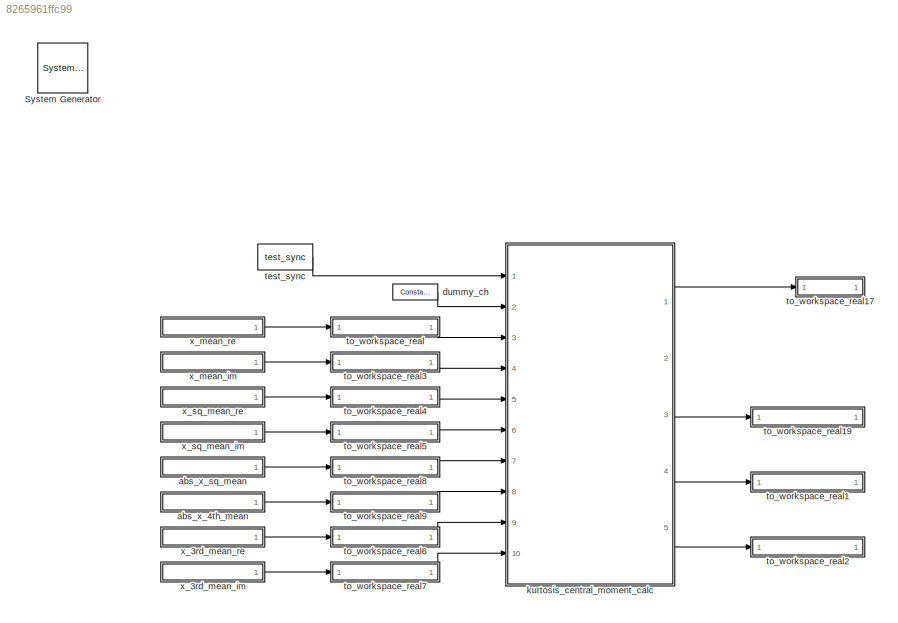
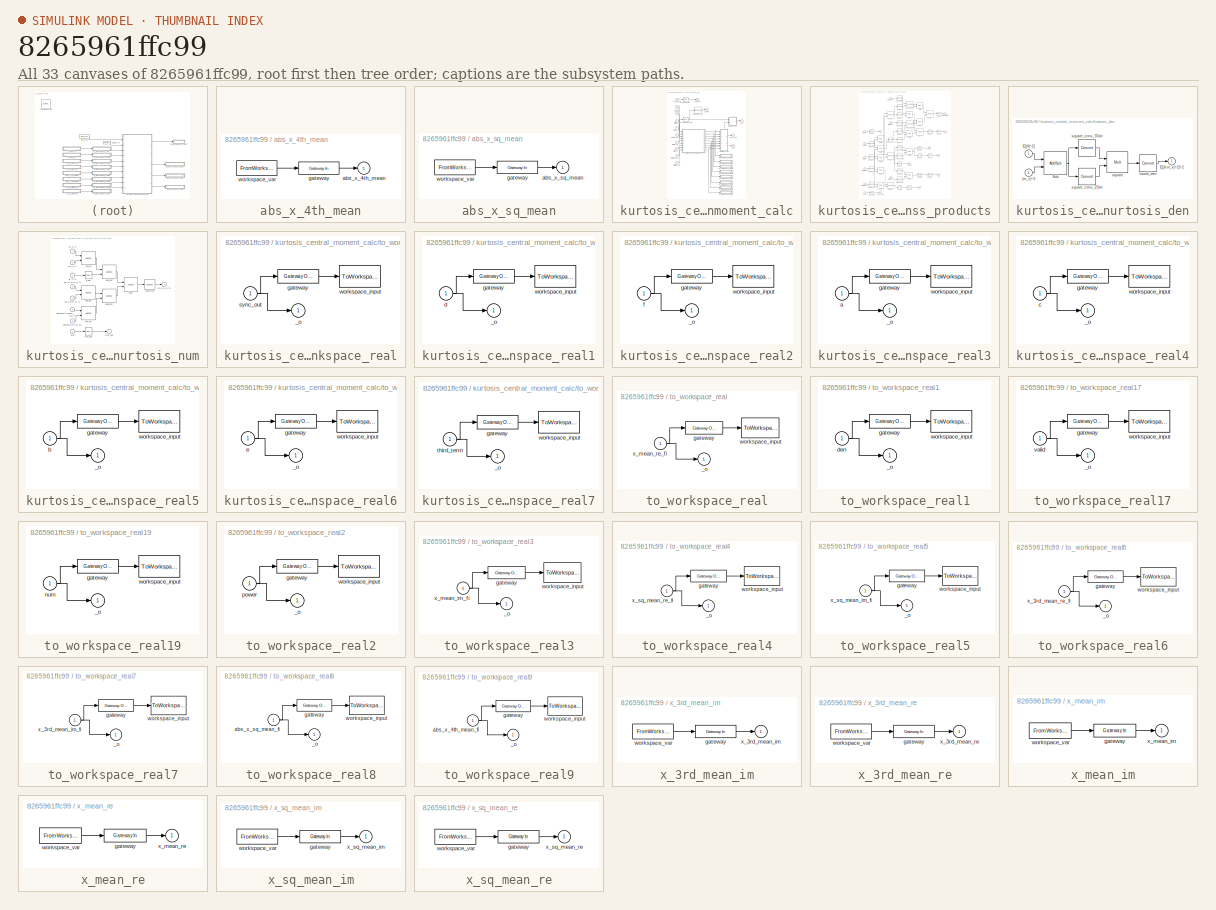
[diagram: thumbnail index - all 33 canvases of the model, root first then tree order]
MODEL slx_8265961ffc99
KIND model
BLOCK [Reference]  System Generator  REF=xbsIndex_r4/ System Generator
  AttributesFormatString = System\nGenerator
  Impl_file = ISE Defaults
  Ports = []
  SourceBlock = xbsIndex_r4/ System Generator
  SourceType = Xilinx System Generator Block
  Synth_file = XST Defaults
  Tag = genX
  UserDataPersistent = on
  block_type = sysgen
  clock_wrapper = Clock Enables
  core_generation = According to Block Masks
  dbl_ovrd = According to Block Masks
  dcm_input_clock_period = 10
  deprecated_control = off
  directory = ./netlist
  eval_field = 0
  has_advanced_control = 0
  incr_netlist = off
  infoedit = System Generator
  package = fbg676
  part = xc7k325t
  proj_type = Project Navigator
  run_coregen = off
  sg_icon_stat = 50,50,0,0,token,white,0,58c5b5770fe5f7c311f53dbc6e73f0f6,right,,[ ],[ ]
  sg_mask_display = fprintf('','COMMENT: begin icon graphics');\npatch([0 50 50 0 0 ],[0 0 50 50 0 ],[1 1 1 ]);\npatch([1.6375 16.81 27.31 37.81 48.31 27.31 12.1375 1.6375 ],[36.655 36.655 47.155 36.655 47.155 47.155 47.155 36.655 ],[0.933333 0.203922 0.141176 ]);\npatch([12.1375 27.31 16.81 1.6375 12.1375 ],[26.155 26.155 36.655 36.655 26.155 ],[0.698039 0.0313725 0.219608 ]);\npatch([1.6375 16.81 27.31 12.1375 1.6375 ]...<+327ch>
  sggui_pos = -1,-1,-1,-1
  simulink_period = 1
  speed = -3
  synthesis_tool = XST
  sysclk_period = 10
  testbench = off
  trim_vbits = Everywhere in SubSystem
  xilinxfamily = Kintex7
BLOCK [SubSystem] abs_x_4th_mean
  FunctionWithSeparateData = off
  MaskHideContents = off
  MinAlgLoopOccurrences = off
  Opaque = off
  Ports = [0, 1]
  PropExecContextOutsideSubsystem = off
  RTWSystemCode = Auto
  RequestExecContextInheritance = off
  UserDataPersistent = on
BLOCK [Outport] abs_x_4th_mean/abs_x_4th_mean
  IconDisplay = Port number
BLOCK [Reference] abs_x_4th_mean/gateway  REF=xbsIndex_r4/Gateway In
  ADCChannel = '1'
  LOCs = {}
  Ports = [1, 1]
  SourceBlock = xbsIndex_r4/Gateway In
  SourceType = Xilinx Gateway In Block
  UseAsADC = off
  arith_type = Signed  (2's comp)
  bin_pt = 82
  block_type = gatewayin
  dbl_ovrd = off
  exp_width = 8
  frac_width = 24
  gui_display_data_type = Fixed-point
  has_advanced_control = 0
  hdl_port = on
  infoedit = Gateway in block.  Converts inputs of type Simulink integer, single, double and fixed-point to  Xilinx fixed-point or floating-point data type.<br><br>Hardware notes:  In hardware these blocks become top level input ports.  <repeated x8 — deduplicated; at blocks: gateway>
  inherit_from_input = off
  locs_specified = off
  n_bits = 88
  overflow = Saturate
  period = 1
  preci_type = Single
  quantization = Round  (unbiased: +/- Inf)
  sg_icon_stat = 65,20,1,1,white,yellow,1,00d3666e,right,,[ ],[ ]
  sg_mask_display = fprintf('','COMMENT: begin icon graphics');\npatch([0 65 65 0 0 ],[0 0 20 20 0 ],[0.95 0.93 0.65 ]);\nplot([0 65 65 0 0 ],[0 0 20 20 0 ]);\npatch([27.55 30.44 32.44 34.44 36.44 32.44 29.55 27.55 ],[12.22 12.22 14.22 12.22 14.22 14.22 14.22 12.22 ],[1 1 1 ]);\npatch([29.55 32.44 30.44 27.55 29.55 ],[10.22 10.22 12.22 12.22 10.22 ],[0.985 0.979 0.895 ]);\npatch([27.55 30.44 32.44 29.55 27.55 ],[8.22 8.22...<+383ch>  <repeated x8 — deduplicated; at blocks: gateway>
  sggui_pos = -1,-1,-1,-1
  timing_constraint = None
  xl_area = [0,0,0,0,0,0,0]
  xl_use_area = off
BLOCK [FromWorkspace] abs_x_4th_mean/workspace_var
  SampleTime = 0
  VariableName = abs_x_4th_mean
  ZeroCross = on
BLOCK [SubSystem] abs_x_sq_mean
  FunctionWithSeparateData = off
  MaskHideContents = off
  MinAlgLoopOccurrences = off
  Opaque = off
  Ports = [0, 1]
  PropExecContextOutsideSubsystem = off
  RTWSystemCode = Auto
  RequestExecContextInheritance = off
  UserDataPersistent = on
BLOCK [Outport] abs_x_sq_mean/abs_x_sq_mean
  IconDisplay = Port number
BLOCK [Reference] abs_x_sq_mean/gateway  REF=xbsIndex_r4/Gateway In
  ADCChannel = '1'
  LOCs = {}
  Ports = [1, 1]
  SourceBlock = xbsIndex_r4/Gateway In
  SourceType = Xilinx Gateway In Block
  UseAsADC = off
  arith_type = Signed  (2's comp)
  bin_pt = 48
  block_type = gatewayin
  dbl_ovrd = off
  exp_width = 8
  frac_width = 24
  gui_display_data_type = Fixed-point
  has_advanced_control = 0
  hdl_port = on
  inherit_from_input = off
  locs_specified = off
  n_bits = 51
  overflow = Saturate
  period = 1
  preci_type = Single
  quantization = Round  (unbiased: +/- Inf)
  sg_icon_stat = 65,20,1,1,white,yellow,1,00d3666e,right,,[ ],[ ]
  sggui_pos = -1,-1,-1,-1
  timing_constraint = None
  xl_area = [0,0,0,0,0,0,0]
  xl_use_area = off
BLOCK [FromWorkspace] abs_x_sq_mean/workspace_var
  SampleTime = 0
  VariableName = abs_x_sq_mean
  ZeroCross = on
BLOCK [Reference] dummy_ch  REF=xbsIndex_r4/Constant
  Ports = [0, 1]
  SourceBlock = xbsIndex_r4/Constant
  SourceType = Xilinx Constant Block Block
  arith_type = Signed (2's comp)
  bin_pt = 14
  block_type = constant
  carry = CIN
  const = 1
  dbl_ovrd = off
  dsp48_infoedit = The use of this block for DSP48 instructions is deprecated.  Please use the Opmode block.
  equ = P=C
  exp_width = 8
  explicit_period = on
  frac_width = 24
  gui_display_data_type = Fixed-point
  has_advanced_control = 0
  inp1 = P
  inp2 = PCIN>>17
  n_bits = 16
  opr = +
  opselect = C
  period = 1
  preci_type = Single
  sg_icon_stat = 45,16,0,1,white,blue,0,1c72b5be,right,,[ ],[ ]
  sg_mask_display = fprintf('','COMMENT: begin icon graphics');\npatch([0 45 45 0 0 ],[0 0 16 16 0 ],[0.77 0.82 0.91 ]);\nplot([0 45 45 0 0 ],[0 0 16 16 0 ]);\npatch([17.55 20.44 22.44 24.44 26.44 22.44 19.55 17.55 ],[10.22 10.22 12.22 10.22 12.22 12.22 12.22 10.22 ],[1 1 1 ]);\npatch([19.55 22.44 20.44 17.55 19.55 ],[8.22 8.22 10.22 10.22 8.22 ],[0.931 0.946 0.973 ]);\npatch([17.55 20.44 22.44 19.55 17.55 ],[6.22 6.22 8....<+300ch>
  sggui_pos = -1,-1,-1,-1
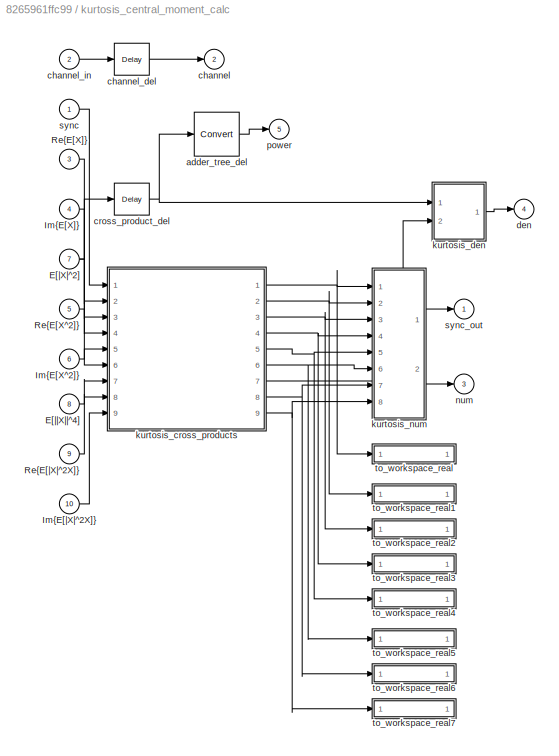
BLOCK [SubSystem] kurtosis_central_moment_calc
  FunctionWithSeparateData = off
  MaskHideContents = off
  MinAlgLoopOccurrences = off
  Opaque = off
  Ports = [10, 5]
  PropExecContextOutsideSubsystem = off
  RTWSystemCode = Auto
  RequestExecContextInheritance = off
BLOCK [Inport] kurtosis_central_moment_calc/E[|X|^2]
  IconDisplay = Port number
  Port = 7
BLOCK [Inport] kurtosis_central_moment_calc/E[||X||^4]
  IconDisplay = Port number
  Port = 8
BLOCK [Inport] kurtosis_central_moment_calc/Im{E[X]}
  IconDisplay = Port number
  Port = 4
BLOCK [Inport] kurtosis_central_moment_calc/Im{E[X^2]}
  IconDisplay = Port number
  Port = 6
BLOCK [Inport] kurtosis_central_moment_calc/Im{E[|X|^2X]}
  IconDisplay = Port number
  Port = 10
BLOCK [Inport] kurtosis_central_moment_calc/Re{E[X]}
  IconDisplay = Port number
  Port = 3
BLOCK [Inport] kurtosis_central_moment_calc/Re{E[X^2]}
  IconDisplay = Port number
  Port = 5
BLOCK [Inport] kurtosis_central_moment_calc/Re{E[|X|^2X]}
  IconDisplay = Port number
  Port = 9
BLOCK [Reference] kurtosis_central_moment_calc/adder_tree_del  REF=xbsIndex_r4/Convert
  Ports = [1, 1]
  SourceBlock = xbsIndex_r4/Convert
  SourceType = Xilinx Type Converter Block
  arith_type = Signed  (2's comp)
  bin_pt = 29
  block_type = convert
  dbl_ovrd = off
  en = off
  exp_bits = 8
  float_type = Single
  fraction_bits = 24
  gui_display_data_type = Fixed-point
  has_advanced_control = 0
  infoedit = Hardware notes: rounding and saturating require hardware resources; truncating and wrapping do not.
  latency = 13
  n_bits = 32
  overflow = Saturate
  pipeline = off
  quantization = Round  (unbiased: +/- Inf)
  sg_icon_stat = 45,44,1,1,white,blue,0,67ab6848,right,,[ ],[ ]
  sg_mask_display = fprintf('','COMMENT: begin icon graphics');\npatch([0 45 45 0 0 ],[0 0 44 44 0 ],[0.77 0.82 0.91 ]);\nplot([0 45 45 0 0 ],[0 0 44 44 0 ]);\npatch([8.65 17.32 23.32 29.32 35.32 23.32 14.65 8.65 ],[28.66 28.66 34.66 28.66 34.66 34.66 34.66 28.66 ],[1 1 1 ]);\npatch([14.65 23.32 17.32 8.65 14.65 ],[22.66 22.66 28.66 28.66 22.66 ],[0.931 0.946 0.973 ]);\npatch([8.65 17.32 23.32 14.65 8.65 ],[16.66 16.66 22...<+398ch>
  sggui_pos = -1,-1,-1,-1
  xl_area = [0,0,0,0,0,0,0]
  xl_use_area = off
BLOCK [Outport] kurtosis_central_moment_calc/channel
  IconDisplay = Port number
  Port = 2
BLOCK [Reference] kurtosis_central_moment_calc/channel_del  REF=xbsIndex_r4/Delay
  Ports = [1, 1]
  SourceBlock = xbsIndex_r4/Delay
  SourceType = Xilinx Delay Block
  block_type = delay
  dbl_ovrd = off
  en = off
  has_advanced_control = 0
  infoedit = Hardware notes: A delay line is a chain, each link of which is an SRL16 followed by a flip-flop.
  infoeditControl = Selection of Reset will increase slice count due to use of real FFs and instead of SRLs
  latency = 38
  reg_retiming = off
  rst = off
  sg_icon_stat = 35,32,1,1,white,blue,0,49da8984,right,,[ ],[ ]
  sg_mask_display = fprintf('','COMMENT: begin icon graphics');\npatch([0 35 35 0 0 ],[0 0 32 32 0 ],[0.77 0.82 0.91 ]);\nplot([0 35 35 0 0 ],[0 0 32 32 0 ]);\npatch([8.1 13.88 17.88 21.88 25.88 17.88 12.1 8.1 ],[20.44 20.44 24.44 20.44 24.44 24.44 24.44 20.44 ],[1 1 1 ]);\npatch([12.1 17.88 13.88 8.1 12.1 ],[16.44 16.44 20.44 20.44 16.44 ],[0.931 0.946 0.973 ]);\npatch([8.1 13.88 17.88 12.1 8.1 ],[12.44 12.44 16.44 16.44...<+299ch>  <repeated x6 — deduplicated; at blocks: channel_del, cross_product_del, a_del, b_del, g_del, sync_del>
  sggui_pos = -1,-1,-1,-1
  xl_area = [0,0,0,0,0,0,0]
  xl_use_area = off
BLOCK [Inport] kurtosis_central_moment_calc/channel_in
  IconDisplay = Port number
  Port = 2
BLOCK [Reference] kurtosis_central_moment_calc/cross_product_del  REF=xbsIndex_r4/Delay
  Ports = [1, 1]
  SourceBlock = xbsIndex_r4/Delay
  SourceType = Xilinx Delay Block
  block_type = delay
  dbl_ovrd = off
  en = off
  has_advanced_control = 0
  infoedit = Hardware notes: A delay line is a chain, each link of which is an SRL16 followed by a flip-flop.
  infoeditControl = Selection of Reset will increase slice count due to use of real FFs and instead of SRLs
  latency = 25
  reg_retiming = off
  rst = off
  sg_icon_stat = 35,32,1,1,white,blue,0,9b3f9d53,right,,[ ],[ ]
  sggui_pos = -1,-1,-1,-1
  xl_area = [0,0,0,0,0,0,0]
  xl_use_area = off
BLOCK [Outport] kurtosis_central_moment_calc/den
  IconDisplay = Port number
  Port = 4
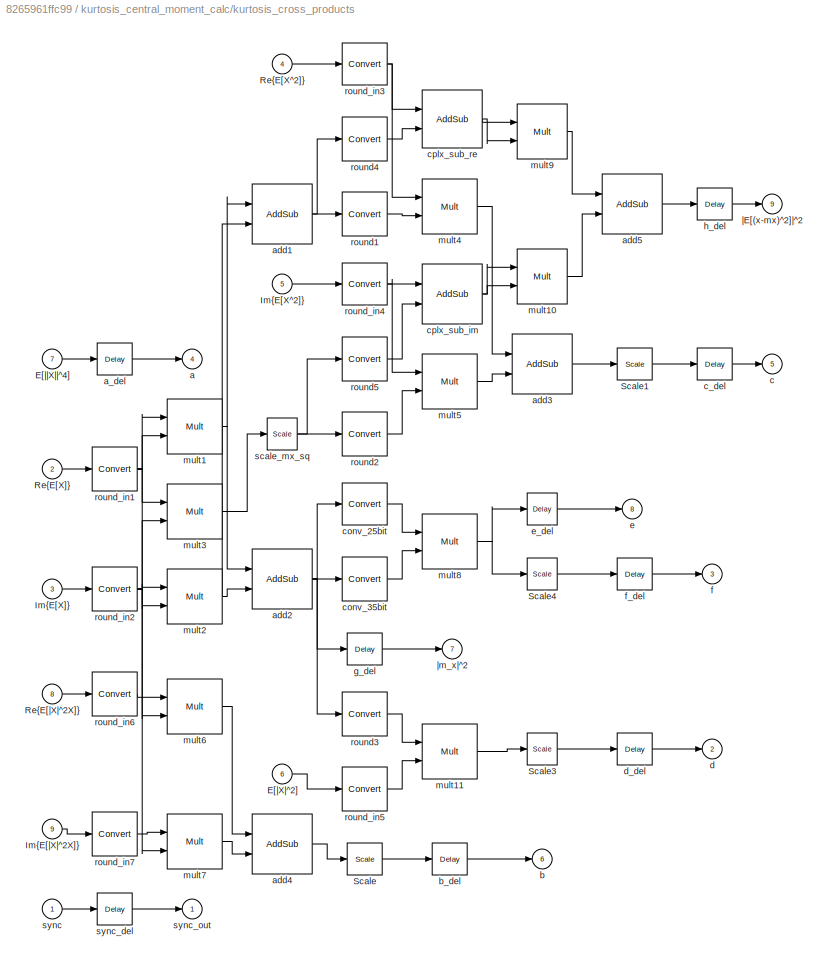
BLOCK [SubSystem] kurtosis_central_moment_calc/kurtosis_cross_products
  FunctionWithSeparateData = off
  MaskHideContents = off
  MinAlgLoopOccurrences = off
  Opaque = off
  Ports = [9, 9]
  PropExecContextOutsideSubsystem = off
  RTWSystemCode = Auto
  RequestExecContextInheritance = off
BLOCK [Inport] kurtosis_central_moment_calc/kurtosis_cross_products/E[|X|^2]
  IconDisplay = Port number
  Port = 6
BLOCK [Inport] kurtosis_central_moment_calc/kurtosis_cross_products/E[||X||^4]
  IconDisplay = Port number
  Port = 7
BLOCK [Inport] kurtosis_central_moment_calc/kurtosis_cross_products/Im{E[X]}
  IconDisplay = Port number
  Port = 3
BLOCK [Inport] kurtosis_central_moment_calc/kurtosis_cross_products/Im{E[X^2]}
  IconDisplay = Port number
  Port = 5
BLOCK [Inport] kurtosis_central_moment_calc/kurtosis_cross_products/Im{E[|X|^2X]}
  IconDisplay = Port number
  Port = 9
BLOCK [Inport] kurtosis_central_moment_calc/kurtosis_cross_products/Re{E[X]}
  IconDisplay = Port number
  Port = 2
BLOCK [Inport] kurtosis_central_moment_calc/kurtosis_cross_products/Re{E[X^2]}
  IconDisplay = Port number
  Port = 4
BLOCK [Inport] kurtosis_central_moment_calc/kurtosis_cross_products/Re{E[|X|^2X]}
  IconDisplay = Port number
  Port = 8
BLOCK [Reference] kurtosis_central_moment_calc/kurtosis_cross_products/Scale  REF=xbsIndex_r4/Scale
  Ports = [1, 1]
  SourceBlock = xbsIndex_r4/Scale
  SourceType = Xilinx Input Scaler Block
  block_type = scale
  dbl_ovrd = off
  has_advanced_control = 0
  infoedit = Scales input by a power of two by adjusting the binary point position.<br><br>Hardware notes: In hardware this block costs nothing.
  scale_factor = 2
  sg_icon_stat = 35,32,1,1,white,blue,0,7414033f,right,,[ ],[ ]
  sg_mask_display = fprintf('','COMMENT: begin icon graphics');\npatch([0 35 35 0 0 ],[0 0 32 32 0 ],[0.77 0.82 0.91 ]);\nplot([0 35 35 0 0 ],[0 0 32 32 0 ]);\npatch([8.1 13.88 17.88 21.88 25.88 17.88 12.1 8.1 ],[20.44 20.44 24.44 20.44 24.44 24.44 24.44 20.44 ],[1 1 1 ]);\npatch([12.1 17.88 13.88 8.1 12.1 ],[16.44 16.44 20.44 20.44 16.44 ],[0.931 0.946 0.973 ]);\npatch([8.1 13.88 17.88 12.1 8.1 ],[12.44 12.44 16.44 16.44...<+302ch>
  sggui_pos = -1,-1,-1,-1
BLOCK [Reference] kurtosis_central_moment_calc/kurtosis_cross_products/Scale1  REF=xbsIndex_r4/Scale
  Ports = [1, 1]
  SourceBlock = xbsIndex_r4/Scale
  SourceType = Xilinx Input Scaler Block
  block_type = scale
  dbl_ovrd = off
  has_advanced_control = 0
  infoedit = Scales input by a power of two by adjusting the binary point position.<br><br>Hardware notes: In hardware this block costs nothing.
  scale_factor = 1
  sg_icon_stat = 35,32,1,1,white,blue,0,960fb61a,right,,[ ],[ ]
  sg_mask_display = fprintf('','COMMENT: begin icon graphics');\npatch([0 35 35 0 0 ],[0 0 32 32 0 ],[0.77 0.82 0.91 ]);\nplot([0 35 35 0 0 ],[0 0 32 32 0 ]);\npatch([8.1 13.88 17.88 21.88 25.88 17.88 12.1 8.1 ],[20.44 20.44 24.44 20.44 24.44 24.44 24.44 20.44 ],[1 1 1 ]);\npatch([12.1 17.88 13.88 8.1 12.1 ],[16.44 16.44 20.44 20.44 16.44 ],[0.931 0.946 0.973 ]);\npatch([8.1 13.88 17.88 12.1 8.1 ],[12.44 12.44 16.44 16.44...<+302ch>
  sggui_pos = -1,-1,-1,-1
BLOCK [Reference] kurtosis_central_moment_calc/kurtosis_cross_products/Scale3  REF=xbsIndex_r4/Scale
  Ports = [1, 1]
  SourceBlock = xbsIndex_r4/Scale
  SourceType = Xilinx Input Scaler Block
  block_type = scale
  dbl_ovrd = off
  has_advanced_control = 0
  infoedit = Scales input by a power of two by adjusting the binary point position.<br><br>Hardware notes: In hardware this block costs nothing.
  scale_factor = 2
  sg_icon_stat = 30,32,1,1,white,blue,0,7414033f,right,,[ ],[ ]
  sg_mask_display = fprintf('','COMMENT: begin icon graphics');\npatch([0 30 30 0 0 ],[0 0 32 32 0 ],[0.77 0.82 0.91 ]);\nplot([0 30 30 0 0 ],[0 0 32 32 0 ]);\npatch([6.1 11.88 15.88 19.88 23.88 15.88 10.1 6.1 ],[20.44 20.44 24.44 20.44 24.44 24.44 24.44 20.44 ],[1 1 1 ]);\npatch([10.1 15.88 11.88 6.1 10.1 ],[16.44 16.44 20.44 20.44 16.44 ],[0.931 0.946 0.973 ]);\npatch([6.1 11.88 15.88 10.1 6.1 ],[12.44 12.44 16.44 16.44...<+302ch>  <repeated x3 — deduplicated; at blocks: Scale3, Scale4, scale_mx_sq>
  sggui_pos = -1,-1,-1,-1
BLOCK [Reference] kurtosis_central_moment_calc/kurtosis_cross_products/Scale4  REF=xbsIndex_r4/Scale
  Ports = [1, 1]
  SourceBlock = xbsIndex_r4/Scale
  SourceType = Xilinx Input Scaler Block
  block_type = scale
  dbl_ovrd = off
  has_advanced_control = 0
  infoedit = Scales input by a power of two by adjusting the binary point position.<br><br>Hardware notes: In hardware this block costs nothing.
  scale_factor = 2
  sg_icon_stat = 30,32,1,1,white,blue,0,7414033f,right,,[ ],[ ]
  sggui_pos = -1,-1,-1,-1
BLOCK [Outport] kurtosis_central_moment_calc/kurtosis_cross_products/a
  IconDisplay = Port number
  Port = 4
BLOCK [Reference] kurtosis_central_moment_calc/kurtosis_cross_products/a_del  REF=xbsIndex_r4/Delay
  Ports = [1, 1]
  SourceBlock = xbsIndex_r4/Delay
  SourceType = Xilinx Delay Block
  block_type = delay
  dbl_ovrd = off
  en = off
  has_advanced_control = 0
  infoedit = Hardware notes: A delay line is a chain, each link of which is an SRL16 followed by a flip-flop.
  infoeditControl = Selection of Reset will increase slice count due to use of real FFs and instead of SRLs
  latency = 25
  reg_retiming = off
  rst = off
  sg_icon_stat = 35,32,1,1,white,blue,0,9b3f9d53,right,,[ ],[ ]
  sggui_pos = -1,-1,-1,-1
  xl_area = [0,0,0,0,0,0,0]
  xl_use_area = off
BLOCK [Reference] kurtosis_central_moment_calc/kurtosis_cross_products/add1  REF=xbsIndex_r4/AddSub
  Ports = [2, 1]
  SourceBlock = xbsIndex_r4/AddSub
  SourceType = Xilinx Adder/Subtracter Block
  arith_type = Signed  (2's comp)
  bin_pt = 34
  block_type = addsub
  dbl_ovrd = off
  en = off
  has_advanced_control = 0
  hw_selection = Fabric
  latency = 2
  mode = Subtraction
  n_bits = 36
  overflow = Wrap
  pipelined = off
  precision = Full
  quantization = Truncate
  sg_icon_stat = 60,60,2,1,white,blue,0,c507509b,right,,[ ],[ ]
  sg_mask_display = fprintf('','COMMENT: begin icon graphics');\npatch([0 60 60 0 0 ],[0 0 60 60 0 ],[0.77 0.82 0.91 ]);\nplot([0 60 60 0 0 ],[0 0 60 60 0 ]);\npatch([12.2 23.76 31.76 39.76 47.76 31.76 20.2 12.2 ],[38.88 38.88 46.88 38.88 46.88 46.88 46.88 38.88 ],[1 1 1 ]);\npatch([20.2 31.76 23.76 12.2 20.2 ],[30.88 30.88 38.88 38.88 30.88 ],[0.931 0.946 0.973 ]);\npatch([12.2 23.76 31.76 20.2 12.2 ],[22.88 22.88 30.88 ...<+520ch>  <repeated x11 — deduplicated; at blocks: add1, add2, add3, add4, add5, cplx_sub_im, Sub, add, add_aef, add_dcb, sub_cb>
  sggui_pos = -1,-1,-1,-1
  use_behavioral_HDL = off
  use_carryin = off
  use_carryout = off
  xl_area = [0,0,0,0,0,0,0]
  xl_use_area = off
BLOCK [Reference] kurtosis_central_moment_calc/kurtosis_cross_products/add2  REF=xbsIndex_r4/AddSub
  Ports = [2, 1]
  SourceBlock = xbsIndex_r4/AddSub
  SourceType = Xilinx Adder/Subtracter Block
  arith_type = Signed  (2's comp)
  bin_pt = 34
  block_type = addsub
  dbl_ovrd = off
  en = off
  has_advanced_control = 0
  hw_selection = Fabric
  latency = 2
  mode = Addition
  n_bits = 36
  overflow = Wrap
  pipelined = off
  precision = Full
  quantization = Truncate
  sg_icon_stat = 60,60,2,1,white,blue,0,dcac4ee3,right,,[ ],[ ]
  sggui_pos = -1,-1,-1,-1
  use_behavioral_HDL = off
  use_carryin = off
  use_carryout = off
  xl_area = [0,0,0,0,0,0,0]
  xl_use_area = off
BLOCK [Reference] kurtosis_central_moment_calc/kurtosis_cross_products/add3  REF=xbsIndex_r4/AddSub
  Ports = [2, 1]
  SourceBlock = xbsIndex_r4/AddSub
  SourceType = Xilinx Adder/Subtracter Block
  arith_type = Signed  (2's comp)
  bin_pt = 34
  block_type = addsub
  dbl_ovrd = off
  en = off
  has_advanced_control = 0
  hw_selection = Fabric
  latency = 3
  mode = Addition
  n_bits = 36
  overflow = Wrap
  pipelined = off
  precision = Full
  quantization = Truncate
  sg_icon_stat = 60,60,2,1,white,blue,0,6cdeed65,right,,[ ],[ ]
  sggui_pos = -1,-1,-1,-1
  use_behavioral_HDL = off
  use_carryin = off
  use_carryout = off
  xl_area = [0,0,0,0,0,0,0]
  xl_use_area = off
BLOCK [Reference] kurtosis_central_moment_calc/kurtosis_cross_products/add4  REF=xbsIndex_r4/AddSub
  Ports = [2, 1]
  SourceBlock = xbsIndex_r4/AddSub
  SourceType = Xilinx Adder/Subtracter Block
  arith_type = Signed  (2's comp)
  bin_pt = 34
  block_type = addsub
  dbl_ovrd = off
  en = off
  has_advanced_control = 0
  hw_selection = Fabric
  latency = 3
  mode = Addition
  n_bits = 36
  overflow = Wrap
  pipelined = off
  precision = Full
  quantization = Truncate
  sg_icon_stat = 60,60,2,1,white,blue,0,6cdeed65,right,,[ ],[ ]
  sggui_pos = -1,-1,-1,-1
  use_behavioral_HDL = off
  use_carryin = off
  use_carryout = off
  xl_area = [0,0,0,0,0,0,0]
  xl_use_area = off
BLOCK [Reference] kurtosis_central_moment_calc/kurtosis_cross_products/add5  REF=xbsIndex_r4/AddSub
  Ports = [2, 1]
  SourceBlock = xbsIndex_r4/AddSub
  SourceType = Xilinx Adder/Subtracter Block
  arith_type = Signed  (2's comp)
  bin_pt = 34
  block_type = addsub
  dbl_ovrd = off
  en = off
  has_advanced_control = 0
  hw_selection = Fabric
  latency = 3
  mode = Addition
  n_bits = 36
  overflow = Wrap
  pipelined = off
  precision = Full
  quantization = Truncate
  sg_icon_stat = 60,60,2,1,white,blue,0,6cdeed65,right,,[ ],[ ]
  sggui_pos = -1,-1,-1,-1
  use_behavioral_HDL = off
  use_carryin = off
  use_carryout = off
  xl_area = [0,0,0,0,0,0,0]
  xl_use_area = off
BLOCK [Outport] kurtosis_central_moment_calc/kurtosis_cross_products/b
  IconDisplay = Port number
  Port = 6
BLOCK [Reference] kurtosis_central_moment_calc/kurtosis_cross_products/b_del  REF=xbsIndex_r4/Delay
  Ports = [1, 1]
  SourceBlock = xbsIndex_r4/Delay
  SourceType = Xilinx Delay Block
  block_type = delay
  dbl_ovrd = off
  en = off
  has_advanced_control = 0
  infoedit = Hardware notes: A delay line is a chain, each link of which is an SRL16 followed by a flip-flop.
  infoeditControl = Selection of Reset will increase slice count due to use of real FFs and instead of SRLs
  latency = 15
  reg_retiming = off
  rst = off
  sg_icon_stat = 35,32,1,1,white,blue,0,c21c4c41,right,,[ ],[ ]
  sggui_pos = -1,-1,-1,-1
  xl_area = [0,0,0,0,0,0,0]
  xl_use_area = off
BLOCK [Outport] kurtosis_central_moment_calc/kurtosis_cross_products/c
  IconDisplay = Port number
  Port = 5
BLOCK [Reference] kurtosis_central_moment_calc/kurtosis_cross_products/c_del  REF=xbsIndex_r4/Delay
  Ports = [1, 1]
  SourceBlock = xbsIndex_r4/Delay
  SourceType = Xilinx Delay Block
  block_type = delay
  dbl_ovrd = off
  en = off
  has_advanced_control = 0
  infoedit = Hardware notes: A delay line is a chain, each link of which is an SRL16 followed by a flip-flop.
  infoeditControl = Selection of Reset will increase slice count due to use of real FFs and instead of SRLs
  latency = 6
  reg_retiming = off
  rst = off
  sg_icon_stat = 35,32,1,1,white,blue,0,aa5bc30d,right,,[ ],[ ]
  sg_mask_display = fprintf('','COMMENT: begin icon graphics');\npatch([0 35 35 0 0 ],[0 0 32 32 0 ],[0.77 0.82 0.91 ]);\nplot([0 35 35 0 0 ],[0 0 32 32 0 ]);\npatch([8.1 13.88 17.88 21.88 25.88 17.88 12.1 8.1 ],[20.44 20.44 24.44 20.44 24.44 24.44 24.44 20.44 ],[1 1 1 ]);\npatch([12.1 17.88 13.88 8.1 12.1 ],[16.44 16.44 20.44 20.44 16.44 ],[0.931 0.946 0.973 ]);\npatch([8.1 13.88 17.88 12.1 8.1 ],[12.44 12.44 16.44 16.44...<+298ch>  <repeated x4 — deduplicated; at blocks: c_del, d_del, f_del, h_del>
  sggui_pos = -1,-1,-1,-1
  xl_area = [0,0,0,0,0,0,0]
  xl_use_area = off
BLOCK [Reference] kurtosis_central_moment_calc/kurtosis_cross_products/conv_25bit  REF=xbsIndex_r4/Convert
  Ports = [1, 1]
  SourceBlock = xbsIndex_r4/Convert
  SourceType = Xilinx Type Converter Block
  arith_type = Signed  (2's comp)
  bin_pt = 22
  block_type = convert
  dbl_ovrd = off
  en = off
  exp_bits = 8
  float_type = Single
  fraction_bits = 24
  gui_display_data_type = Fixed-point
  has_advanced_control = 0
  infoedit = Hardware notes: rounding and saturating require hardware resources; truncating and wrapping do not.
  latency = 3
  n_bits = 25
  overflow = Saturate
  pipeline = off
  quantization = Round  (unbiased: +/- Inf)
  sg_icon_stat = 45,42,1,1,white,blue,0,0bfac013,right,,[ ],[ ]
  sg_mask_display = fprintf('','COMMENT: begin icon graphics');\npatch([0 45 45 0 0 ],[0 0 42 42 0 ],[0.77 0.82 0.91 ]);\nplot([0 45 45 0 0 ],[0 0 42 42 0 ]);\npatch([8.65 17.32 23.32 29.32 35.32 23.32 14.65 8.65 ],[27.66 27.66 33.66 27.66 33.66 33.66 33.66 27.66 ],[1 1 1 ]);\npatch([14.65 23.32 17.32 8.65 14.65 ],[21.66 21.66 27.66 27.66 21.66 ],[0.931 0.946 0.973 ]);\npatch([8.65 17.32 23.32 14.65 8.65 ],[15.66 15.66 21...<+393ch>
  sggui_pos = -1,-1,-1,-1
  xl_area = [0,0,0,0,0,0,0]
  xl_use_area = off
BLOCK [Reference] kurtosis_central_moment_calc/kurtosis_cross_products/conv_35bit  REF=xbsIndex_r4/Convert
  Ports = [1, 1]
  SourceBlock = xbsIndex_r4/Convert
  SourceType = Xilinx Type Converter Block
  arith_type = Signed  (2's comp)
  bin_pt = 32
  block_type = convert
  dbl_ovrd = off
  en = off
  exp_bits = 8
  float_type = Single
  fraction_bits = 24
  gui_display_data_type = Fixed-point
  has_advanced_control = 0
  infoedit = Hardware notes: rounding and saturating require hardware resources; truncating and wrapping do not.
  latency = 3
  n_bits = 35
  overflow = Saturate
  pipeline = off
  quantization = Round  (unbiased: +/- Inf)
  sg_icon_stat = 45,44,1,1,white,blue,0,0bfac013,right,,[ ],[ ]
  sg_mask_display = fprintf('','COMMENT: begin icon graphics');\npatch([0 45 45 0 0 ],[0 0 44 44 0 ],[0.77 0.82 0.91 ]);\nplot([0 45 45 0 0 ],[0 0 44 44 0 ]);\npatch([8.65 17.32 23.32 29.32 35.32 23.32 14.65 8.65 ],[28.66 28.66 34.66 28.66 34.66 34.66 34.66 28.66 ],[1 1 1 ]);\npatch([14.65 23.32 17.32 8.65 14.65 ],[22.66 22.66 28.66 28.66 22.66 ],[0.931 0.946 0.973 ]);\npatch([8.65 17.32 23.32 14.65 8.65 ],[16.66 16.66 22...<+397ch>  <repeated x14 — deduplicated; at blocks: conv_35bit, round1, round2, round3, round4, round5, round_in1, round_in2, round_in6, round_in7, round_den, square_conv_25bit, square_conv_35bit, round_num>
  sggui_pos = -1,-1,-1,-1
  xl_area = [0,0,0,0,0,0,0]
  xl_use_area = off
BLOCK [Reference] kurtosis_central_moment_calc/kurtosis_cross_products/cplx_sub_im  REF=xbsIndex_r4/AddSub
  Ports = [2, 1]
  SourceBlock = xbsIndex_r4/AddSub
  SourceType = Xilinx Adder/Subtracter Block
  arith_type = Signed  (2's comp)
  bin_pt = 34
  block_type = addsub
  dbl_ovrd = off
  en = off
  has_advanced_control = 0
  hw_selection = Fabric
  latency = 2
  mode = Subtraction
  n_bits = 36
  overflow = Wrap
  pipelined = off
  precision = Full
  quantization = Truncate
  sg_icon_stat = 60,60,2,1,white,blue,0,c507509b,right,,[ ],[ ]
  sggui_pos = -1,-1,-1,-1
  use_behavioral_HDL = off
  use_carryin = off
  use_carryout = off
  xl_area = [0,0,0,0,0,0,0]
  xl_use_area = off
BLOCK [Reference] kurtosis_central_moment_calc/kurtosis_cross_products/cplx_sub_re  REF=xbsIndex_r4/AddSub
  Ports = [2, 1]
  SourceBlock = xbsIndex_r4/AddSub
  SourceType = Xilinx Adder/Subtracter Block
  arith_type = Signed  (2's comp)
  bin_pt = 34
  block_type = addsub
  dbl_ovrd = off
  en = off
  has_advanced_control = 0
  hw_selection = Fabric
  latency = 2
  mode = Subtraction
  n_bits = 36
  overflow = Wrap
  pipelined = off
  precision = Full
  quantization = Truncate
  sg_icon_stat = 60,58,2,1,white,blue,0,c507509b,right,,[ ],[ ]
  sg_mask_display = fprintf('','COMMENT: begin icon graphics');\npatch([0 60 60 0 0 ],[0 0 58 58 0 ],[0.77 0.82 0.91 ]);\nplot([0 60 60 0 0 ],[0 0 58 58 0 ]);\npatch([12.2 23.76 31.76 39.76 47.76 31.76 20.2 12.2 ],[37.88 37.88 45.88 37.88 45.88 45.88 45.88 37.88 ],[1 1 1 ]);\npatch([20.2 31.76 23.76 12.2 20.2 ],[29.88 29.88 37.88 37.88 29.88 ],[0.931 0.946 0.973 ]);\npatch([12.2 23.76 31.76 20.2 12.2 ],[21.88 21.88 29.88 ...<+520ch>  <repeated x3 — deduplicated; at blocks: cplx_sub_re, sub_dh, sub_ef>
  sggui_pos = -1,-1,-1,-1
  use_behavioral_HDL = off
  use_carryin = off
  use_carryout = off
  xl_area = [0,0,0,0,0,0,0]
  xl_use_area = off
BLOCK [Outport] kurtosis_central_moment_calc/kurtosis_cross_products/d
  IconDisplay = Port number
  Port = 2
BLOCK [Reference] kurtosis_central_moment_calc/kurtosis_cross_products/d_del  REF=xbsIndex_r4/Delay
  Ports = [1, 1]
  SourceBlock = xbsIndex_r4/Delay
  SourceType = Xilinx Delay Block
  block_type = delay
  dbl_ovrd = off
  en = off
  has_advanced_control = 0
  infoedit = Hardware notes: A delay line is a chain, each link of which is an SRL16 followed by a flip-flop.
  infoeditControl = Selection of Reset will increase slice count due to use of real FFs and instead of SRLs
  latency = 9
  reg_retiming = off
  rst = off
  sg_icon_stat = 35,32,1,1,white,blue,0,c2fef566,right,,[ ],[ ]
  sggui_pos = -1,-1,-1,-1
  xl_area = [0,0,0,0,0,0,0]
  xl_use_area = off
BLOCK [Outport] kurtosis_central_moment_calc/kurtosis_cross_products/e
  IconDisplay = Port number
  Port = 8
BLOCK [Reference] kurtosis_central_moment_calc/kurtosis_cross_products/e_del  REF=xbsIndex_r4/Delay
  Ports = [1, 1]
  SourceBlock = xbsIndex_r4/Delay
  SourceType = Xilinx Delay Block
  block_type = delay
  dbl_ovrd = off
  en = off
  has_advanced_control = 0
  infoedit = Hardware notes: A delay line is a chain, each link of which is an SRL16 followed by a flip-flop.
  infoeditControl = Selection of Reset will increase slice count due to use of real FFs and instead of SRLs
  latency = 9
  reg_retiming = off
  rst = off
  sg_icon_stat = 30,32,1,1,white,blue,0,c2fef566,right,,[ ],[ ]
  sg_mask_display = fprintf('','COMMENT: begin icon graphics');\npatch([0 30 30 0 0 ],[0 0 32 32 0 ],[0.77 0.82 0.91 ]);\nplot([0 30 30 0 0 ],[0 0 32 32 0 ]);\npatch([6.1 11.88 15.88 19.88 23.88 15.88 10.1 6.1 ],[20.44 20.44 24.44 20.44 24.44 24.44 24.44 20.44 ],[1 1 1 ]);\npatch([10.1 15.88 11.88 6.1 10.1 ],[16.44 16.44 20.44 20.44 16.44 ],[0.931 0.946 0.973 ]);\npatch([6.1 11.88 15.88 10.1 6.1 ],[12.44 12.44 16.44 16.44...<+298ch>
  sggui_pos = -1,-1,-1,-1
  xl_area = [0,0,0,0,0,0,0]
  xl_use_area = off
BLOCK [Outport] kurtosis_central_moment_calc/kurtosis_cross_products/f
  IconDisplay = Port number
  Port = 3
BLOCK [Reference] kurtosis_central_moment_calc/kurtosis_cross_products/f_del  REF=xbsIndex_r4/Delay
  Ports = [1, 1]
  SourceBlock = xbsIndex_r4/Delay
  SourceType = Xilinx Delay Block
  block_type = delay
  dbl_ovrd = off
  en = off
  has_advanced_control = 0
  infoedit = Hardware notes: A delay line is a chain, each link of which is an SRL16 followed by a flip-flop.
  infoeditControl = Selection of Reset will increase slice count due to use of real FFs and instead of SRLs
  latency = 9
  reg_retiming = off
  rst = off
  sg_icon_stat = 35,32,1,1,white,blue,0,c2fef566,right,,[ ],[ ]
  sggui_pos = -1,-1,-1,-1
  xl_area = [0,0,0,0,0,0,0]
  xl_use_area = off
BLOCK [Reference] kurtosis_central_moment_calc/kurtosis_cross_products/g_del  REF=xbsIndex_r4/Delay
  Ports = [1, 1]
  SourceBlock = xbsIndex_r4/Delay
  SourceType = Xilinx Delay Block
  block_type = delay
  dbl_ovrd = off
  en = off
  has_advanced_control = 0
  infoedit = Hardware notes: A delay line is a chain, each link of which is an SRL16 followed by a flip-flop.
  infoeditControl = Selection of Reset will increase slice count due to use of real FFs and instead of SRLs
  latency = 16
  reg_retiming = off
  rst = off
  sg_icon_stat = 35,32,1,1,white,blue,0,f89f7887,right,,[ ],[ ]
  sggui_pos = -1,-1,-1,-1
  xl_area = [0,0,0,0,0,0,0]
  xl_use_area = off
BLOCK [Reference] kurtosis_central_moment_calc/kurtosis_cross_products/h_del  REF=xbsIndex_r4/Delay
  Ports = [1, 1]
  SourceBlock = xbsIndex_r4/Delay
  SourceType = Xilinx Delay Block
  block_type = delay
  dbl_ovrd = off
  en = off
  has_advanced_control = 0
  infoedit = Hardware notes: A delay line is a chain, each link of which is an SRL16 followed by a flip-flop.
  infoeditControl = Selection of Reset will increase slice count due to use of real FFs and instead of SRLs
  latency = 2
  reg_retiming = off
  rst = off
  sg_icon_stat = 35,32,1,1,white,blue,0,85ce9542,right,,[ ],[ ]
  sggui_pos = -1,-1,-1,-1
  xl_area = [0,0,0,0,0,0,0]
  xl_use_area = off
BLOCK [Reference] kurtosis_central_moment_calc/kurtosis_cross_products/mult1  REF=xbsIndex_r4/Mult
  Ports = [2, 1]
  SourceBlock = xbsIndex_r4/Mult
  SourceType = Xilinx Multiplier Block
  arith_type = Signed  (2's comp)
  bin_pt = 34
  block_type = mult
  dbl_ovrd = off
  en = off
  has_advanced_control = 0
  infoedit = Hardware notes: To check for the optimum internal pipeline stages of the dedicated multiplier you must select 'Test for optimum pipelining'.<br><br>Optimization Goal: For implementation into device fabric (LUTs), the Speed or Area optimization will take effect only if it's supported by IP for the particular device family. Otherwise, the results will be identical regardless of the selection.  <repeated x12 — deduplicated; at blocks: mult1, mult10, mult11, mult2, mult3, mult4, mult5, mult6, mult7, mult8, mult9, square>
  latency = 4
  n_bits = 36
  opt = Speed
  optimum_pipeline = off
  overflow = Wrap
  pipeline = on
  placement_style = Triangular
  precision = Full
  quantization = Truncate
  sg_icon_stat = 55,55,2,1,white,blue,0,d1df6e1f,right,,[ ],[ ]
  sg_mask_display = fprintf('','COMMENT: begin icon graphics');\npatch([0 55 55 0 0 ],[0 0 55 55 0 ],[0.77 0.82 0.91 ]);\nplot([0 55 55 0 0 ],[0 0 55 55 0 ]);\npatch([11.425 21.54 28.54 35.54 42.54 28.54 18.425 11.425 ],[34.77 34.77 41.77 34.77 41.77 41.77 41.77 34.77 ],[1 1 1 ]);\npatch([18.425 28.54 21.54 11.425 18.425 ],[27.77 27.77 34.77 34.77 27.77 ],[0.931 0.946 0.973 ]);\npatch([11.425 21.54 28.54 18.425 11.425 ],[...<+522ch>  <repeated x10 — deduplicated; at blocks: mult1, mult11, mult2, mult3, mult4, mult5, mult6, mult7, mult8, square>
  sggui_pos = -1,-1,-1,-1
  use_behavioral_HDL = off
  use_embedded = on
  use_rpm = on
  xl_area = [0,0,0,0,0,0,0]
  xl_use_area = off
BLOCK [Reference] kurtosis_central_moment_calc/kurtosis_cross_products/mult10  REF=xbsIndex_r4/Mult
  Ports = [2, 1]
  SourceBlock = xbsIndex_r4/Mult
  SourceType = Xilinx Multiplier Block
  arith_type = Signed  (2's comp)
  bin_pt = 34
  block_type = mult
  dbl_ovrd = off
  en = off
  has_advanced_control = 0
  latency = 6
  n_bits = 36
  opt = Speed
  optimum_pipeline = off
  overflow = Wrap
  pipeline = on
  placement_style = Triangular
  precision = Full
  quantization = Truncate
  sg_icon_stat = 50,55,2,1,white,blue,0,bb737a25,right,,[ ],[ ]
  sg_mask_display = fprintf('','COMMENT: begin icon graphics');\npatch([0 50 50 0 0 ],[0 0 55 55 0 ],[0.77 0.82 0.91 ]);\nplot([0 50 50 0 0 ],[0 0 55 55 0 ]);\npatch([9.425 19.54 26.54 33.54 40.54 26.54 16.425 9.425 ],[34.77 34.77 41.77 34.77 41.77 41.77 41.77 34.77 ],[1 1 1 ]);\npatch([16.425 26.54 19.54 9.425 16.425 ],[27.77 27.77 34.77 34.77 27.77 ],[0.931 0.946 0.973 ]);\npatch([9.425 19.54 26.54 16.425 9.425 ],[20.77...<+516ch>
  sggui_pos = -1,-1,-1,-1
  use_behavioral_HDL = off
  use_embedded = on
  use_rpm = on
  xl_area = [0,0,0,0,0,0,0]
  xl_use_area = off
BLOCK [Reference] kurtosis_central_moment_calc/kurtosis_cross_products/mult11  REF=xbsIndex_r4/Mult
  Ports = [2, 1]
  SourceBlock = xbsIndex_r4/Mult
  SourceType = Xilinx Multiplier Block
  arith_type = Signed  (2's comp)
  bin_pt = 34
  block_type = mult
  dbl_ovrd = off
  en = off
  has_advanced_control = 0
  latency = 4
  n_bits = 36
  opt = Speed
  optimum_pipeline = off
  overflow = Wrap
  pipeline = on
  placement_style = Triangular
  precision = Full
  quantization = Truncate
  sg_icon_stat = 55,55,2,1,white,blue,0,d1df6e1f,right,,[ ],[ ]
  sggui_pos = -1,-1,-1,-1
  use_behavioral_HDL = off
  use_embedded = on
  use_rpm = on
  xl_area = [0,0,0,0,0,0,0]
  xl_use_area = off
BLOCK [Reference] kurtosis_central_moment_calc/kurtosis_cross_products/mult2  REF=xbsIndex_r4/Mult
  Ports = [2, 1]
  SourceBlock = xbsIndex_r4/Mult
  SourceType = Xilinx Multiplier Block
  arith_type = Signed  (2's comp)
  bin_pt = 34
  block_type = mult
  dbl_ovrd = off
  en = off
  has_advanced_control = 0
  latency = 4
  n_bits = 36
  opt = Speed
  optimum_pipeline = off
  overflow = Wrap
  pipeline = on
  placement_style = Triangular
  precision = Full
  quantization = Truncate
  sg_icon_stat = 55,55,2,1,white,blue,0,d1df6e1f,right,,[ ],[ ]
  sggui_pos = -1,-1,-1,-1
  use_behavioral_HDL = off
  use_embedded = on
  use_rpm = on
  xl_area = [0,0,0,0,0,0,0]
  xl_use_area = off
BLOCK [Reference] kurtosis_central_moment_calc/kurtosis_cross_products/mult3  REF=xbsIndex_r4/Mult
  Ports = [2, 1]
  SourceBlock = xbsIndex_r4/Mult
  SourceType = Xilinx Multiplier Block
  arith_type = Signed  (2's comp)
  bin_pt = 34
  block_type = mult
  dbl_ovrd = off
  en = off
  has_advanced_control = 0
  latency = 4
  n_bits = 36
  opt = Speed
  optimum_pipeline = off
  overflow = Wrap
  pipeline = on
  placement_style = Triangular
  precision = Full
  quantization = Truncate
  sg_icon_stat = 55,55,2,1,white,blue,0,d1df6e1f,right,,[ ],[ ]
  sggui_pos = -1,-1,-1,-1
  use_behavioral_HDL = off
  use_embedded = on
  use_rpm = on
  xl_area = [0,0,0,0,0,0,0]
  xl_use_area = off
BLOCK [Reference] kurtosis_central_moment_calc/kurtosis_cross_products/mult4  REF=xbsIndex_r4/Mult
  Ports = [2, 1]
  SourceBlock = xbsIndex_r4/Mult
  SourceType = Xilinx Multiplier Block
  arith_type = Signed  (2's comp)
  bin_pt = 34
  block_type = mult
  dbl_ovrd = off
  en = off
  has_advanced_control = 0
  latency = 4
  n_bits = 36
  opt = Speed
  optimum_pipeline = off
  overflow = Wrap
  pipeline = on
  placement_style = Triangular
  precision = Full
  quantization = Truncate
  sg_icon_stat = 55,55,2,1,white,blue,0,d1df6e1f,right,,[ ],[ ]
  sggui_pos = -1,-1,-1,-1
  use_behavioral_HDL = off
  use_embedded = on
  use_rpm = on
  xl_area = [0,0,0,0,0,0,0]
  xl_use_area = off
BLOCK [Reference] kurtosis_central_moment_calc/kurtosis_cross_products/mult5  REF=xbsIndex_r4/Mult
  Ports = [2, 1]
  SourceBlock = xbsIndex_r4/Mult
  SourceType = Xilinx Multiplier Block
  arith_type = Signed  (2's comp)
  bin_pt = 34
  block_type = mult
  dbl_ovrd = off
  en = off
  has_advanced_control = 0
  latency = 4
  n_bits = 36
  opt = Speed
  optimum_pipeline = off
  overflow = Wrap
  pipeline = on
  placement_style = Triangular
  precision = Full
  quantization = Truncate
  sg_icon_stat = 55,55,2,1,white,blue,0,d1df6e1f,right,,[ ],[ ]
  sggui_pos = -1,-1,-1,-1
  use_behavioral_HDL = off
  use_embedded = on
  use_rpm = on
  xl_area = [0,0,0,0,0,0,0]
  xl_use_area = off
BLOCK [Reference] kurtosis_central_moment_calc/kurtosis_cross_products/mult6  REF=xbsIndex_r4/Mult
  Ports = [2, 1]
  SourceBlock = xbsIndex_r4/Mult
  SourceType = Xilinx Multiplier Block
  arith_type = Signed  (2's comp)
  bin_pt = 34
  block_type = mult
  dbl_ovrd = off
  en = off
  has_advanced_control = 0
  latency = 4
  n_bits = 36
  opt = Speed
  optimum_pipeline = off
  overflow = Wrap
  pipeline = on
  placement_style = Triangular
  precision = Full
  quantization = Truncate
  sg_icon_stat = 55,55,2,1,white,blue,0,d1df6e1f,right,,[ ],[ ]
  sggui_pos = -1,-1,-1,-1
  use_behavioral_HDL = off
  use_embedded = on
  use_rpm = on
  xl_area = [0,0,0,0,0,0,0]
  xl_use_area = off
BLOCK [Reference] kurtosis_central_moment_calc/kurtosis_cross_products/mult7  REF=xbsIndex_r4/Mult
  Ports = [2, 1]
  SourceBlock = xbsIndex_r4/Mult
  SourceType = Xilinx Multiplier Block
  arith_type = Signed  (2's comp)
  bin_pt = 34
  block_type = mult
  dbl_ovrd = off
  en = off
  has_advanced_control = 0
  latency = 4
  n_bits = 36
  opt = Speed
  optimum_pipeline = off
  overflow = Wrap
  pipeline = on
  placement_style = Triangular
  precision = Full
  quantization = Truncate
  sg_icon_stat = 55,55,2,1,white,blue,0,d1df6e1f,right,,[ ],[ ]
  sggui_pos = -1,-1,-1,-1
  use_behavioral_HDL = off
  use_embedded = on
  use_rpm = on
  xl_area = [0,0,0,0,0,0,0]
  xl_use_area = off
BLOCK [Reference] kurtosis_central_moment_calc/kurtosis_cross_products/mult8  REF=xbsIndex_r4/Mult
  Ports = [2, 1]
  SourceBlock = xbsIndex_r4/Mult
  SourceType = Xilinx Multiplier Block
  arith_type = Signed  (2's comp)
  bin_pt = 34
  block_type = mult
  dbl_ovrd = off
  en = off
  has_advanced_control = 0
  latency = 4
  n_bits = 36
  opt = Speed
  optimum_pipeline = off
  overflow = Wrap
  pipeline = on
  placement_style = Triangular
  precision = Full
  quantization = Truncate
  sg_icon_stat = 55,55,2,1,white,blue,0,d1df6e1f,right,,[ ],[ ]
  sggui_pos = -1,-1,-1,-1
  use_behavioral_HDL = off
  use_embedded = on
  use_rpm = on
  xl_area = [0,0,0,0,0,0,0]
  xl_use_area = off
BLOCK [Reference] kurtosis_central_moment_calc/kurtosis_cross_products/mult9  REF=xbsIndex_r4/Mult
  Ports = [2, 1]
  SourceBlock = xbsIndex_r4/Mult
  SourceType = Xilinx Multiplier Block
  arith_type = Signed  (2's comp)
  bin_pt = 34
  block_type = mult
  dbl_ovrd = off
  en = off
  has_advanced_control = 0
  latency = 6
  n_bits = 36
  opt = Speed
  optimum_pipeline = off
  overflow = Wrap
  pipeline = on
  placement_style = Triangular
  precision = Full
  quantization = Truncate
  sg_icon_stat = 50,55,2,1,white,blue,0,bb737a25,right,,[ ],[ ]
  sg_mask_display = fprintf('','COMMENT: begin icon graphics');\npatch([0 50 50 0 0 ],[0 0 55 55 0 ],[0.77 0.82 0.91 ]);\nplot([0 50 50 0 0 ],[0 0 55 55 0 ]);\npatch([9.425 19.54 26.54 33.54 40.54 26.54 16.425 9.425 ],[34.77 34.77 41.77 34.77 41.77 41.77 41.77 34.77 ],[1 1 1 ]);\npatch([16.425 26.54 19.54 9.425 16.425 ],[27.77 27.77 34.77 34.77 27.77 ],[0.931 0.946 0.973 ]);\npatch([9.425 19.54 26.54 16.425 9.425 ],[20.77...<+516ch>
  sggui_pos = -1,-1,-1,-1
  use_behavioral_HDL = off
  use_embedded = on
  use_rpm = on
  xl_area = [0,0,0,0,0,0,0]
  xl_use_area = off
BLOCK [Reference] kurtosis_central_moment_calc/kurtosis_cross_products/round1  REF=xbsIndex_r4/Convert
  Ports = [1, 1]
  SourceBlock = xbsIndex_r4/Convert
  SourceType = Xilinx Type Converter Block
  arith_type = Signed  (2's comp)
  bin_pt = 22
  block_type = convert
  dbl_ovrd = off
  en = off
  exp_bits = 8
  float_type = Single
  fraction_bits = 24
  gui_display_data_type = Fixed-point
  has_advanced_control = 0
  infoedit = Hardware notes: rounding and saturating require hardware resources; truncating and wrapping do not.
  latency = 3
  n_bits = 25
  overflow = Saturate
  pipeline = off
  quantization = Round  (unbiased: +/- Inf)
  sg_icon_stat = 45,44,1,1,white,blue,0,0bfac013,right,,[ ],[ ]
  sggui_pos = -1,-1,-1,-1
  xl_area = [0,0,0,0,0,0,0]
  xl_use_area = off
BLOCK [Reference] kurtosis_central_moment_calc/kurtosis_cross_products/round2  REF=xbsIndex_r4/Convert
  Ports = [1, 1]
  SourceBlock = xbsIndex_r4/Convert
  SourceType = Xilinx Type Converter Block
  arith_type = Signed  (2's comp)
  bin_pt = 22
  block_type = convert
  dbl_ovrd = off
  en = off
  exp_bits = 8
  float_type = Single
  fraction_bits = 24
  gui_display_data_type = Fixed-point
  has_advanced_control = 0
  infoedit = Hardware notes: rounding and saturating require hardware resources; truncating and wrapping do not.
  latency = 5
  n_bits = 25
  overflow = Saturate
  pipeline = off
  quantization = Round  (unbiased: +/- Inf)
  sg_icon_stat = 45,44,1,1,white,blue,0,a0ef3d54,right,,[ ],[ ]
  sggui_pos = -1,-1,-1,-1
  xl_area = [0,0,0,0,0,0,0]
  xl_use_area = off
BLOCK [Reference] kurtosis_central_moment_calc/kurtosis_cross_products/round3  REF=xbsIndex_r4/Convert
  Ports = [1, 1]
  SourceBlock = xbsIndex_r4/Convert
  SourceType = Xilinx Type Converter Block
  arith_type = Signed  (2's comp)
  bin_pt = 22
  block_type = convert
  dbl_ovrd = off
  en = off
  exp_bits = 8
  float_type = Single
  fraction_bits = 24
  gui_display_data_type = Fixed-point
  has_advanced_control = 0
  infoedit = Hardware notes: rounding and saturating require hardware resources; truncating and wrapping do not.
  latency = 3
  n_bits = 25
  overflow = Saturate
  pipeline = off
  quantization = Round  (unbiased: +/- Inf)
  sg_icon_stat = 45,44,1,1,white,blue,0,0bfac013,right,,[ ],[ ]
  sggui_pos = -1,-1,-1,-1
  xl_area = [0,0,0,0,0,0,0]
  xl_use_area = off
BLOCK [Reference] kurtosis_central_moment_calc/kurtosis_cross_products/round4  REF=xbsIndex_r4/Convert
  Ports = [1, 1]
  SourceBlock = xbsIndex_r4/Convert
  SourceType = Xilinx Type Converter Block
  arith_type = Signed  (2's comp)
  bin_pt = 32
  block_type = convert
  dbl_ovrd = off
  en = off
  exp_bits = 8
  float_type = Single
  fraction_bits = 24
  gui_display_data_type = Fixed-point
  has_advanced_control = 0
  infoedit = Hardware notes: rounding and saturating require hardware resources; truncating and wrapping do not.
  latency = 3
  n_bits = 35
  overflow = Saturate
  pipeline = off
  quantization = Round  (unbiased: +/- Inf)
  sg_icon_stat = 45,44,1,1,white,blue,0,0bfac013,right,,[ ],[ ]
  sggui_pos = -1,-1,-1,-1
  xl_area = [0,0,0,0,0,0,0]
  xl_use_area = off
BLOCK [Reference] kurtosis_central_moment_calc/kurtosis_cross_products/round5  REF=xbsIndex_r4/Convert
  Ports = [1, 1]
  SourceBlock = xbsIndex_r4/Convert
  SourceType = Xilinx Type Converter Block
  arith_type = Signed  (2's comp)
  bin_pt = 32
  block_type = convert
  dbl_ovrd = off
  en = off
  exp_bits = 8
  float_type = Single
  fraction_bits = 24
  gui_display_data_type = Fixed-point
  has_advanced_control = 0
  infoedit = Hardware notes: rounding and saturating require hardware resources; truncating and wrapping do not.
  latency = 3
  n_bits = 35
  overflow = Saturate
  pipeline = off
  quantization = Round  (unbiased: +/- Inf)
  sg_icon_stat = 45,44,1,1,white,blue,0,0bfac013,right,,[ ],[ ]
  sggui_pos = -1,-1,-1,-1
  xl_area = [0,0,0,0,0,0,0]
  xl_use_area = off
BLOCK [Reference] kurtosis_central_moment_calc/kurtosis_cross_products/round_in1  REF=xbsIndex_r4/Convert
  Ports = [1, 1]
  SourceBlock = xbsIndex_r4/Convert
  SourceType = Xilinx Type Converter Block
  arith_type = Signed  (2's comp)
  bin_pt = 24
  block_type = convert
  dbl_ovrd = off
  en = off
  exp_bits = 8
  float_type = Single
  fraction_bits = 24
  gui_display_data_type = Fixed-point
  has_advanced_control = 0
  infoedit = Hardware notes: rounding and saturating require hardware resources; truncating and wrapping do not.
  latency = 3
  n_bits = 25
  overflow = Saturate
  pipeline = off
  quantization = Round  (unbiased: +/- Inf)
  sg_icon_stat = 45,44,1,1,white,blue,0,0bfac013,right,,[ ],[ ]
  sggui_pos = -1,-1,-1,-1
  xl_area = [0,0,0,0,0,0,0]
  xl_use_area = off
BLOCK [Reference] kurtosis_central_moment_calc/kurtosis_cross_products/round_in2  REF=xbsIndex_r4/Convert
  Ports = [1, 1]
  SourceBlock = xbsIndex_r4/Convert
  SourceType = Xilinx Type Converter Block
  arith_type = Signed  (2's comp)
  bin_pt = 24
  block_type = convert
  dbl_ovrd = off
  en = off
  exp_bits = 8
  float_type = Single
  fraction_bits = 24
  gui_display_data_type = Fixed-point
  has_advanced_control = 0
  infoedit = Hardware notes: rounding and saturating require hardware resources; truncating and wrapping do not.
  latency = 3
  n_bits = 25
  overflow = Saturate
  pipeline = off
  quantization = Round  (unbiased: +/- Inf)
  sg_icon_stat = 45,44,1,1,white,blue,0,0bfac013,right,,[ ],[ ]
  sggui_pos = -1,-1,-1,-1
  xl_area = [0,0,0,0,0,0,0]
  xl_use_area = off
BLOCK [Reference] kurtosis_central_moment_calc/kurtosis_cross_products/round_in3  REF=xbsIndex_r4/Convert
  Ports = [1, 1]
  SourceBlock = xbsIndex_r4/Convert
  SourceType = Xilinx Type Converter Block
  arith_type = Signed  (2's comp)
  bin_pt = 32
  block_type = convert
  dbl_ovrd = off
  en = off
  exp_bits = 8
  float_type = Single
  fraction_bits = 24
  gui_display_data_type = Fixed-point
  has_advanced_control = 0
  infoedit = Hardware notes: rounding and saturating require hardware resources; truncating and wrapping do not.
  latency = 12
  n_bits = 35
  overflow = Saturate
  pipeline = off
  quantization = Round  (unbiased: +/- Inf)
  sg_icon_stat = 45,42,1,1,white,blue,0,f2ff72af,right,,[ ],[ ]
  sg_mask_display = fprintf('','COMMENT: begin icon graphics');\npatch([0 45 45 0 0 ],[0 0 42 42 0 ],[0.77 0.82 0.91 ]);\nplot([0 45 45 0 0 ],[0 0 42 42 0 ]);\npatch([8.65 17.32 23.32 29.32 35.32 23.32 14.65 8.65 ],[27.66 27.66 33.66 27.66 33.66 33.66 33.66 27.66 ],[1 1 1 ]);\npatch([14.65 23.32 17.32 8.65 14.65 ],[21.66 21.66 27.66 27.66 21.66 ],[0.931 0.946 0.973 ]);\npatch([8.65 17.32 23.32 14.65 8.65 ],[15.66 15.66 21...<+394ch>
  sggui_pos = -1,-1,-1,-1
  xl_area = [0,0,0,0,0,0,0]
  xl_use_area = off
BLOCK [Reference] kurtosis_central_moment_calc/kurtosis_cross_products/round_in4  REF=xbsIndex_r4/Convert
  Ports = [1, 1]
  SourceBlock = xbsIndex_r4/Convert
  SourceType = Xilinx Type Converter Block
  arith_type = Signed  (2's comp)
  bin_pt = 32
  block_type = convert
  dbl_ovrd = off
  en = off
  exp_bits = 8
  float_type = Single
  fraction_bits = 24
  gui_display_data_type = Fixed-point
  has_advanced_control = 0
  infoedit = Hardware notes: rounding and saturating require hardware resources; truncating and wrapping do not.
  latency = 12
  n_bits = 35
  overflow = Saturate
  pipeline = off
  quantization = Round  (unbiased: +/- Inf)
  sg_icon_stat = 45,42,1,1,white,blue,0,f2ff72af,right,,[ ],[ ]
  sg_mask_display = fprintf('','COMMENT: begin icon graphics');\npatch([0 45 45 0 0 ],[0 0 42 42 0 ],[0.77 0.82 0.91 ]);\nplot([0 45 45 0 0 ],[0 0 42 42 0 ]);\npatch([8.65 17.32 23.32 29.32 35.32 23.32 14.65 8.65 ],[27.66 27.66 33.66 27.66 33.66 33.66 33.66 27.66 ],[1 1 1 ]);\npatch([14.65 23.32 17.32 8.65 14.65 ],[21.66 21.66 27.66 27.66 21.66 ],[0.931 0.946 0.973 ]);\npatch([8.65 17.32 23.32 14.65 8.65 ],[15.66 15.66 21...<+394ch>
  sggui_pos = -1,-1,-1,-1
  xl_area = [0,0,0,0,0,0,0]
  xl_use_area = off
BLOCK [Reference] kurtosis_central_moment_calc/kurtosis_cross_products/round_in5  REF=xbsIndex_r4/Convert
  Ports = [1, 1]
  SourceBlock = xbsIndex_r4/Convert
  SourceType = Xilinx Type Converter Block
  arith_type = Signed  (2's comp)
  bin_pt = 32
  block_type = convert
  dbl_ovrd = off
  en = off
  exp_bits = 8
  float_type = Single
  fraction_bits = 24
  gui_display_data_type = Fixed-point
  has_advanced_control = 0
  infoedit = Hardware notes: rounding and saturating require hardware resources; truncating and wrapping do not.
  latency = 12
  n_bits = 35
  overflow = Saturate
  pipeline = off
  quantization = Round  (unbiased: +/- Inf)
  sg_icon_stat = 45,44,1,1,white,blue,0,f2ff72af,right,,[ ],[ ]
  sg_mask_display = fprintf('','COMMENT: begin icon graphics');\npatch([0 45 45 0 0 ],[0 0 44 44 0 ],[0.77 0.82 0.91 ]);\nplot([0 45 45 0 0 ],[0 0 44 44 0 ]);\npatch([8.65 17.32 23.32 29.32 35.32 23.32 14.65 8.65 ],[28.66 28.66 34.66 28.66 34.66 34.66 34.66 28.66 ],[1 1 1 ]);\npatch([14.65 23.32 17.32 8.65 14.65 ],[22.66 22.66 28.66 28.66 22.66 ],[0.931 0.946 0.973 ]);\npatch([8.65 17.32 23.32 14.65 8.65 ],[16.66 16.66 22...<+398ch>
  sggui_pos = -1,-1,-1,-1
  xl_area = [0,0,0,0,0,0,0]
  xl_use_area = off
BLOCK [Reference] kurtosis_central_moment_calc/kurtosis_cross_products/round_in6  REF=xbsIndex_r4/Convert
  Ports = [1, 1]
  SourceBlock = xbsIndex_r4/Convert
  SourceType = Xilinx Type Converter Block
  arith_type = Signed  (2's comp)
  bin_pt = 31
  block_type = convert
  dbl_ovrd = off
  en = off
  exp_bits = 8
  float_type = Single
  fraction_bits = 24
  gui_display_data_type = Fixed-point
  has_advanced_control = 0
  infoedit = Hardware notes: rounding and saturating require hardware resources; truncating and wrapping do not.
  latency = 3
  n_bits = 35
  overflow = Saturate
  pipeline = off
  quantization = Round  (unbiased: +/- Inf)
  sg_icon_stat = 45,44,1,1,white,blue,0,0bfac013,right,,[ ],[ ]
  sggui_pos = -1,-1,-1,-1
  xl_area = [0,0,0,0,0,0,0]
  xl_use_area = off
BLOCK [Reference] kurtosis_central_moment_calc/kurtosis_cross_products/round_in7  REF=xbsIndex_r4/Convert
  Ports = [1, 1]
  SourceBlock = xbsIndex_r4/Convert
  SourceType = Xilinx Type Converter Block
  arith_type = Signed  (2's comp)
  bin_pt = 31
  block_type = convert
  dbl_ovrd = off
  en = off
  exp_bits = 8
  float_type = Single
  fraction_bits = 24
  gui_display_data_type = Fixed-point
  has_advanced_control = 0
  infoedit = Hardware notes: rounding and saturating require hardware resources; truncating and wrapping do not.
  latency = 3
  n_bits = 35
  overflow = Saturate
  pipeline = off
  quantization = Round  (unbiased: +/- Inf)
  sg_icon_stat = 45,44,1,1,white,blue,0,0bfac013,right,,[ ],[ ]
  sggui_pos = -1,-1,-1,-1
  xl_area = [0,0,0,0,0,0,0]
  xl_use_area = off
BLOCK [Reference] kurtosis_central_moment_calc/kurtosis_cross_products/scale_mx_sq  REF=xbsIndex_r4/Scale
  Ports = [1, 1]
  SourceBlock = xbsIndex_r4/Scale
  SourceType = Xilinx Input Scaler Block
  block_type = scale
  dbl_ovrd = off
  has_advanced_control = 0
  infoedit = Scales input by a power of two by adjusting the binary point position.<br><br>Hardware notes: In hardware this block costs nothing.
  scale_factor = 1
  sg_icon_stat = 30,32,1,1,white,blue,0,960fb61a,right,,[ ],[ ]
  sggui_pos = -1,-1,-1,-1
BLOCK [Inport] kurtosis_central_moment_calc/kurtosis_cross_products/sync
  IconDisplay = Port number
BLOCK [Reference] kurtosis_central_moment_calc/kurtosis_cross_products/sync_del  REF=xbsIndex_r4/Delay
  Ports = [1, 1]
  SourceBlock = xbsIndex_r4/Delay
  SourceType = Xilinx Delay Block
  block_type = delay
  dbl_ovrd = off
  en = off
  has_advanced_control = 0
  infoedit = Hardware notes: A delay line is a chain, each link of which is an SRL16 followed by a flip-flop.
  infoeditControl = Selection of Reset will increase slice count due to use of real FFs and instead of SRLs
  latency = 25
  reg_retiming = off
  rst = off
  sg_icon_stat = 35,32,1,1,white,blue,0,9b3f9d53,right,,[ ],[ ]
  sggui_pos = -1,-1,-1,-1
  xl_area = [0,0,0,0,0,0,0]
  xl_use_area = off
BLOCK [Outport] kurtosis_central_moment_calc/kurtosis_cross_products/sync_out
  IconDisplay = Port number
BLOCK [Outport] kurtosis_central_moment_calc/kurtosis_cross_products/|E[(x-mx)^2]|^2
  IconDisplay = Port number
  Port = 9
BLOCK [Outport] kurtosis_central_moment_calc/kurtosis_cross_products/|m_x|^2
  IconDisplay = Port number
  Port = 7
BLOCK [SubSystem] kurtosis_central_moment_calc/kurtosis_den
  FunctionWithSeparateData = off
  MaskHideContents = off
  MinAlgLoopOccurrences = off
  Opaque = off
  Ports = [2, 1]
  PropExecContextOutsideSubsystem = off
  RTWSystemCode = Auto
  RequestExecContextInheritance = off
BLOCK [Outport] kurtosis_central_moment_calc/kurtosis_den/E[|X-m_x|^2]^2
  IconDisplay = Port number
BLOCK [Inport] kurtosis_central_moment_calc/kurtosis_den/E[|X|^2]
  IconDisplay = Port number
BLOCK [Reference] kurtosis_central_moment_calc/kurtosis_den/Sub  REF=xbsIndex_r4/AddSub
  Ports = [2, 1]
  SourceBlock = xbsIndex_r4/AddSub
  SourceType = Xilinx Adder/Subtracter Block
  arith_type = Signed  (2's comp)
  bin_pt = 34
  block_type = addsub
  dbl_ovrd = off
  en = off
  has_advanced_control = 0
  hw_selection = Fabric
  latency = 4
  mode = Subtraction
  n_bits = 36
  overflow = Wrap
  pipelined = off
  precision = Full
  quantization = Truncate
  sg_icon_stat = 60,60,2,1,white,blue,0,47390571,right,,[ ],[ ]
  sggui_pos = -1,-1,-1,-1
  use_behavioral_HDL = off
  use_carryin = off
  use_carryout = off
  xl_area = [0,0,0,0,0,0,0]
  xl_use_area = off
BLOCK [Reference] kurtosis_central_moment_calc/kurtosis_den/round_den  REF=xbsIndex_r4/Convert
  Ports = [1, 1]
  SourceBlock = xbsIndex_r4/Convert
  SourceType = Xilinx Type Converter Block
  arith_type = Signed  (2's comp)
  bin_pt = 56
  block_type = convert
  dbl_ovrd = off
  en = off
  exp_bits = 8
  float_type = Single
  fraction_bits = 24
  gui_display_data_type = Fixed-point
  has_advanced_control = 0
  infoedit = Hardware notes: rounding and saturating require hardware resources; truncating and wrapping do not.
  latency = 1
  n_bits = 64
  overflow = Saturate
  pipeline = off
  quantization = Round  (unbiased: +/- Inf)
  sg_icon_stat = 45,44,1,1,white,blue,0,0c6bad53,right,,[ ],[ ]
  sggui_pos = -1,-1,-1,-1
  xl_area = [0,0,0,0,0,0,0]
  xl_use_area = off
BLOCK [Reference] kurtosis_central_moment_calc/kurtosis_den/square  REF=xbsIndex_r4/Mult
  Ports = [2, 1]
  SourceBlock = xbsIndex_r4/Mult
  SourceType = Xilinx Multiplier Block
  arith_type = Signed  (2's comp)
  bin_pt = 34
  block_type = mult
  dbl_ovrd = off
  en = off
  has_advanced_control = 0
  latency = 5
  n_bits = 36
  opt = Speed
  optimum_pipeline = off
  overflow = Wrap
  pipeline = on
  placement_style = Triangular
  precision = Full
  quantization = Truncate
  sg_icon_stat = 55,55,2,1,white,blue,0,1fb4e767,right,,[ ],[ ]
  sggui_pos = -1,-1,-1,-1
  use_behavioral_HDL = off
  use_embedded = on
  use_rpm = on
  xl_area = [0,0,0,0,0,0,0]
  xl_use_area = off
BLOCK [Reference] kurtosis_central_moment_calc/kurtosis_den/square_conv_25bit  REF=xbsIndex_r4/Convert
  Ports = [1, 1]
  SourceBlock = xbsIndex_r4/Convert
  SourceType = Xilinx Type Converter Block
  arith_type = Signed  (2's comp)
  bin_pt = 21
  block_type = convert
  dbl_ovrd = off
  en = off
  exp_bits = 8
  float_type = Single
  fraction_bits = 24
  gui_display_data_type = Fixed-point
  has_advanced_control = 0
  infoedit = Hardware notes: rounding and saturating require hardware resources; truncating and wrapping do not.
  latency = 3
  n_bits = 25
  overflow = Saturate
  pipeline = off
  quantization = Round  (unbiased: +/- Inf)
  sg_icon_stat = 45,44,1,1,white,blue,0,0bfac013,right,,[ ],[ ]
  sggui_pos = -1,-1,-1,-1
  xl_area = [0,0,0,0,0,0,0]
  xl_use_area = off
BLOCK [Reference] kurtosis_central_moment_calc/kurtosis_den/square_conv_35bit  REF=xbsIndex_r4/Convert
  Ports = [1, 1]
  SourceBlock = xbsIndex_r4/Convert
  SourceType = Xilinx Type Converter Block
  arith_type = Signed  (2's comp)
  bin_pt = 31
  block_type = convert
  dbl_ovrd = off
  en = off
  exp_bits = 8
  float_type = Single
  fraction_bits = 24
  gui_display_data_type = Fixed-point
  has_advanced_control = 0
  infoedit = Hardware notes: rounding and saturating require hardware resources; truncating and wrapping do not.
  latency = 3
  n_bits = 35
  overflow = Saturate
  pipeline = off
  quantization = Round  (unbiased: +/- Inf)
  sg_icon_stat = 45,44,1,1,white,blue,0,0bfac013,right,,[ ],[ ]
  sggui_pos = -1,-1,-1,-1
  xl_area = [0,0,0,0,0,0,0]
  xl_use_area = off
BLOCK [Inport] kurtosis_central_moment_calc/kurtosis_den/|m_x|^2
  IconDisplay = Port number
  Port = 2
BLOCK [SubSystem] kurtosis_central_moment_calc/kurtosis_num
  FunctionWithSeparateData = off
  MaskHideContents = off
  MinAlgLoopOccurrences = off
  Opaque = off
  Ports = [8, 2]
  PropExecContextOutsideSubsystem = off
  RTWSystemCode = Auto
  RequestExecContextInheritance = off
BLOCK [Inport] kurtosis_central_moment_calc/kurtosis_num/4E[|X|^2]|m_x|^2
  IconDisplay = Port number
  Port = 2
BLOCK [Inport] kurtosis_central_moment_calc/kurtosis_num/4|m_x|^4
  IconDisplay = Port number
  Port = 3
BLOCK [Outport] kurtosis_central_moment_calc/kurtosis_num/E[|X-m_x|^4]
  IconDisplay = Port number
  Port = 2
BLOCK [Inport] kurtosis_central_moment_calc/kurtosis_num/E[|X|^4]
  IconDisplay = Port number
  Port = 4
BLOCK [Inport] kurtosis_central_moment_calc/kurtosis_num/Re{2E[X^2*conj(m_x^2)]}
  IconDisplay = Port number
  Port = 5
BLOCK [Inport] kurtosis_central_moment_calc/kurtosis_num/Re{4E[X|X|^2*m_x]}
  IconDisplay = Port number
  Port = 6
BLOCK [Reference] kurtosis_central_moment_calc/kurtosis_num/a_del  REF=xbsIndex_r4/Delay
  Ports = [1, 1]
  SourceBlock = xbsIndex_r4/Delay
  SourceType = Xilinx Delay Block
  block_type = delay
  dbl_ovrd = off
  en = off
  has_advanced_control = 0
  infoedit = Hardware notes: A delay line is a chain, each link of which is an SRL16 followed by a flip-flop.
  infoeditControl = Selection of Reset will increase slice count due to use of real FFs and instead of SRLs
  latency = 4
  reg_retiming = off
  rst = off
  sg_icon_stat = 30,32,1,1,white,blue,0,d390c2d8,right,,[ ],[ ]
  sg_mask_display = fprintf('','COMMENT: begin icon graphics');\npatch([0 30 30 0 0 ],[0 0 32 32 0 ],[0.77 0.82 0.91 ]);\nplot([0 30 30 0 0 ],[0 0 32 32 0 ]);\npatch([6.1 11.88 15.88 19.88 23.88 15.88 10.1 6.1 ],[20.44 20.44 24.44 20.44 24.44 24.44 24.44 20.44 ],[1 1 1 ]);\npatch([10.1 15.88 11.88 6.1 10.1 ],[16.44 16.44 20.44 20.44 16.44 ],[0.931 0.946 0.973 ]);\npatch([6.1 11.88 15.88 10.1 6.1 ],[12.44 12.44 16.44 16.44...<+298ch>
  sggui_pos = -1,-1,-1,-1
  xl_area = [0,0,0,0,0,0,0]
  xl_use_area = off
BLOCK [Reference] kurtosis_central_moment_calc/kurtosis_num/add  REF=xbsIndex_r4/AddSub
  Ports = [2, 1]
  SourceBlock = xbsIndex_r4/AddSub
  SourceType = Xilinx Adder/Subtracter Block
  arith_type = Signed  (2's comp)
  bin_pt = 34
  block_type = addsub
  dbl_ovrd = off
  en = off
  has_advanced_control = 0
  hw_selection = Fabric
  latency = 4
  mode = Addition
  n_bits = 36
  overflow = Wrap
  pipelined = off
  precision = Full
  quantization = Truncate
  sg_icon_stat = 60,60,2,1,white,blue,0,eeab5c4c,right,,[ ],[ ]
  sggui_pos = -1,-1,-1,-1
  use_behavioral_HDL = off
  use_carryin = off
  use_carryout = off
  xl_area = [0,0,0,0,0,0,0]
  xl_use_area = off
BLOCK [Reference] kurtosis_central_moment_calc/kurtosis_num/add_aef  REF=xbsIndex_r4/AddSub
  Ports = [2, 1]
  SourceBlock = xbsIndex_r4/AddSub
  SourceType = Xilinx Adder/Subtracter Block
  arith_type = Signed  (2's comp)
  bin_pt = 34
  block_type = addsub
  dbl_ovrd = off
  en = off
  has_advanced_control = 0
  hw_selection = Fabric
  latency = 4
  mode = Addition
  n_bits = 36
  overflow = Wrap
  pipelined = off
  precision = Full
  quantization = Truncate
  sg_icon_stat = 60,60,2,1,white,blue,0,eeab5c4c,right,,[ ],[ ]
  sggui_pos = -1,-1,-1,-1
  use_behavioral_HDL = off
  use_carryin = off
  use_carryout = off
  xl_area = [0,0,0,0,0,0,0]
  xl_use_area = off
BLOCK [Reference] kurtosis_central_moment_calc/kurtosis_num/add_dcb  REF=xbsIndex_r4/AddSub
  Ports = [2, 1]
  SourceBlock = xbsIndex_r4/AddSub
  SourceType = Xilinx Adder/Subtracter Block
  arith_type = Signed  (2's comp)
  bin_pt = 34
  block_type = addsub
  dbl_ovrd = off
  en = off
  has_advanced_control = 0
  hw_selection = Fabric
  latency = 4
  mode = Addition
  n_bits = 36
  overflow = Wrap
  pipelined = off
  precision = Full
  quantization = Truncate
  sg_icon_stat = 60,60,2,1,white,blue,0,eeab5c4c,right,,[ ],[ ]
  sggui_pos = -1,-1,-1,-1
  use_behavioral_HDL = off
  use_carryin = off
  use_carryout = off
  xl_area = [0,0,0,0,0,0,0]
  xl_use_area = off
BLOCK [Reference] kurtosis_central_moment_calc/kurtosis_num/round_num  REF=xbsIndex_r4/Convert
  Ports = [1, 1]
  SourceBlock = xbsIndex_r4/Convert
  SourceType = Xilinx Type Converter Block
  arith_type = Signed  (2's comp)
  bin_pt = 84
  block_type = convert
  dbl_ovrd = off
  en = off
  exp_bits = 8
  float_type = Single
  fraction_bits = 24
  gui_display_data_type = Fixed-point
  has_advanced_control = 0
  infoedit = Hardware notes: rounding and saturating require hardware resources; truncating and wrapping do not.
  latency = 1
  n_bits = 96
  overflow = Saturate
  pipeline = off
  quantization = Round  (unbiased: +/- Inf)
  sg_icon_stat = 45,44,1,1,white,blue,0,0c6bad53,right,,[ ],[ ]
  sggui_pos = -1,-1,-1,-1
  xl_area = [0,0,0,0,0,0,0]
  xl_use_area = off
BLOCK [Reference] kurtosis_central_moment_calc/kurtosis_num/sub_cb  REF=xbsIndex_r4/AddSub
  Ports = [2, 1]
  SourceBlock = xbsIndex_r4/AddSub
  SourceType = Xilinx Adder/Subtracter Block
  arith_type = Signed  (2's comp)
  bin_pt = 34
  block_type = addsub
  dbl_ovrd = off
  en = off
  has_advanced_control = 0
  hw_selection = Fabric
  latency = 4
  mode = Subtraction
  n_bits = 36
  overflow = Wrap
  pipelined = off
  precision = Full
  quantization = Truncate
  sg_icon_stat = 60,60,2,1,white,blue,0,47390571,right,,[ ],[ ]
  sggui_pos = -1,-1,-1,-1
  use_behavioral_HDL = off
  use_carryin = off
  use_carryout = off
  xl_area = [0,0,0,0,0,0,0]
  xl_use_area = off
BLOCK [Reference] kurtosis_central_moment_calc/kurtosis_num/sub_dh  REF=xbsIndex_r4/AddSub
  Ports = [2, 1]
  SourceBlock = xbsIndex_r4/AddSub
  SourceType = Xilinx Adder/Subtracter Block
  arith_type = Signed  (2's comp)
  bin_pt = 34
  block_type = addsub
  dbl_ovrd = off
  en = off
  has_advanced_control = 0
  hw_selection = Fabric
  latency = 4
  mode = Subtraction
  n_bits = 36
  overflow = Wrap
  pipelined = off
  precision = Full
  quantization = Truncate
  sg_icon_stat = 60,58,2,1,white,blue,0,47390571,right,,[ ],[ ]
  sggui_pos = -1,-1,-1,-1
  use_behavioral_HDL = off
  use_carryin = off
  use_carryout = off
  xl_area = [0,0,0,0,0,0,0]
  xl_use_area = off
BLOCK [Reference] kurtosis_central_moment_calc/kurtosis_num/sub_ef  REF=xbsIndex_r4/AddSub
  Ports = [2, 1]
  SourceBlock = xbsIndex_r4/AddSub
  SourceType = Xilinx Adder/Subtracter Block
  arith_type = Signed  (2's comp)
  bin_pt = 34
  block_type = addsub
  dbl_ovrd = off
  en = off
  has_advanced_control = 0
  hw_selection = Fabric
  latency = 4
  mode = Subtraction
  n_bits = 36
  overflow = Wrap
  pipelined = off
  precision = Full
  quantization = Truncate
  sg_icon_stat = 60,58,2,1,white,blue,0,47390571,right,,[ ],[ ]
  sggui_pos = -1,-1,-1,-1
  use_behavioral_HDL = off
  use_carryin = off
  use_carryout = off
  xl_area = [0,0,0,0,0,0,0]
  xl_use_area = off
BLOCK [Inport] kurtosis_central_moment_calc/kurtosis_num/sync
  IconDisplay = Port number
BLOCK [Reference] kurtosis_central_moment_calc/kurtosis_num/sync_del  REF=xbsIndex_r4/Delay
  Ports = [1, 1]
  SourceBlock = xbsIndex_r4/Delay
  SourceType = Xilinx Delay Block
  block_type = delay
  dbl_ovrd = off
  en = off
  has_advanced_control = 0
  infoedit = Hardware notes: A delay line is a chain, each link of which is an SRL16 followed by a flip-flop.
  infoeditControl = Selection of Reset will increase slice count due to use of real FFs and instead of SRLs
  latency = 13
  reg_retiming = off
  rst = off
  sg_icon_stat = 30,32,1,1,white,blue,0,58c8c5ee,right,,[ ],[ ]
  sg_mask_display = fprintf('','COMMENT: begin icon graphics');\npatch([0 30 30 0 0 ],[0 0 32 32 0 ],[0.77 0.82 0.91 ]);\nplot([0 30 30 0 0 ],[0 0 32 32 0 ]);\npatch([6.1 11.88 15.88 19.88 23.88 15.88 10.1 6.1 ],[20.44 20.44 24.44 20.44 24.44 24.44 24.44 20.44 ],[1 1 1 ]);\npatch([10.1 15.88 11.88 6.1 10.1 ],[16.44 16.44 20.44 20.44 16.44 ],[0.931 0.946 0.973 ]);\npatch([6.1 11.88 15.88 10.1 6.1 ],[12.44 12.44 16.44 16.44...<+299ch>
  sggui_pos = -1,-1,-1,-1
  xl_area = [0,0,0,0,0,0,0]
  xl_use_area = off
BLOCK [Outport] kurtosis_central_moment_calc/kurtosis_num/sync_out
  IconDisplay = Port number
BLOCK [Inport] kurtosis_central_moment_calc/kurtosis_num/|E[(x-mx)^2]|^2
  IconDisplay = Port number
  Port = 8
BLOCK [Inport] kurtosis_central_moment_calc/kurtosis_num/|m_x|^4
  IconDisplay = Port number
  Port = 7
BLOCK [Outport] kurtosis_central_moment_calc/num
  IconDisplay = Port number
  Port = 3
BLOCK [Outport] kurtosis_central_moment_calc/power
  IconDisplay = Port number
  Port = 5
BLOCK [Inport] kurtosis_central_moment_calc/sync
  IconDisplay = Port number
BLOCK [Outport] kurtosis_central_moment_calc/sync_out
  IconDisplay = Port number
BLOCK [SubSystem] kurtosis_central_moment_calc/to_workspace_real
  FunctionWithSeparateData = off
  MaskHideContents = off
  MinAlgLoopOccurrences = off
  Opaque = off
  Ports = [1, 1]
  PropExecContextOutsideSubsystem = off
  RTWSystemCode = Auto
  RequestExecContextInheritance = off
  UserDataPersistent = on
BLOCK [Outport] kurtosis_central_moment_calc/to_workspace_real/_o
  IconDisplay = Port number
BLOCK [Reference] kurtosis_central_moment_calc/to_workspace_real/gateway  REF=xbsIndex_r4/Gateway Out
  DACChannel = '1'
  LOCs = {}
  Ports = [1, 1]
  SourceBlock = xbsIndex_r4/Gateway Out
  SourceType = Xilinx Gateway Out Block
  UseAsDAC = off
  block_type = gatewayout
  has_advanced_control = 0
  hdl_port = off
  infoedit = Gateway out block.  Converts Xilinx fixed-point or floating-point type inputs into ouputs of type Simulink integer, single, double, or fixed-point.<br><br>Hardware notes:  In hardware these blocks become top level output ports or are discarded, depending on how they are configured.  <repeated x20 — deduplicated; at blocks: gateway>
  inherit_from_input = on
  locs_specified = off
  sg_icon_stat = 60,20,1,1,white,grey,1,632ec840,right,,[ ],[ ]
  sg_mask_display = fprintf('','COMMENT: begin icon graphics');\npatch([0 60 60 0 0 ],[0 0 20 20 0 ],[0.88 0.88 0.88 ]);\nplot([0 60 60 0 0 ],[0 0 20 20 0 ]);\npatch([25.55 28.44 30.44 32.44 34.44 30.44 27.55 25.55 ],[12.22 12.22 14.22 12.22 14.22 14.22 14.22 12.22 ],[1 1 1 ]);\npatch([27.55 30.44 28.44 25.55 27.55 ],[10.22 10.22 12.22 12.22 10.22 ],[0.964 0.964 0.964 ]);\npatch([25.55 28.44 30.44 27.55 25.55 ],[8.22 8.22...<+381ch>  <repeated x20 — deduplicated; at blocks: gateway>
  sggui_pos = -1,-1,-1,-1
  timing_constraint = None
  xl_area = [0,0,0,0,0,0,0]
  xl_use_area = off
BLOCK [Inport] kurtosis_central_moment_calc/to_workspace_real/sync_out
  IconDisplay = Port number
BLOCK [ToWorkspace] kurtosis_central_moment_calc/to_workspace_real/workspace_input
  FixptAsFi = on
  MaxDataPoints = inf
  Ports = [1]
  SampleTime = -1
  VariableName = sync_out
BLOCK [SubSystem] kurtosis_central_moment_calc/to_workspace_real1
  FunctionWithSeparateData = off
  MaskHideContents = off
  MinAlgLoopOccurrences = off
  Opaque = off
  Ports = [1, 1]
  PropExecContextOutsideSubsystem = off
  RTWSystemCode = Auto
  RequestExecContextInheritance = off
  UserDataPersistent = on
BLOCK [Outport] kurtosis_central_moment_calc/to_workspace_real1/_o
  IconDisplay = Port number
BLOCK [Inport] kurtosis_central_moment_calc/to_workspace_real1/d
  IconDisplay = Port number
BLOCK [Reference] kurtosis_central_moment_calc/to_workspace_real1/gateway  REF=xbsIndex_r4/Gateway Out
  DACChannel = '1'
  LOCs = {}
  Ports = [1, 1]
  SourceBlock = xbsIndex_r4/Gateway Out
  SourceType = Xilinx Gateway Out Block
  UseAsDAC = off
  block_type = gatewayout
  has_advanced_control = 0
  hdl_port = off
  inherit_from_input = on
  locs_specified = off
  sg_icon_stat = 60,20,1,1,white,grey,1,632ec840,right,,[ ],[ ]
  sggui_pos = -1,-1,-1,-1
  timing_constraint = None
  xl_area = [0,0,0,0,0,0,0]
  xl_use_area = off
BLOCK [ToWorkspace] kurtosis_central_moment_calc/to_workspace_real1/workspace_input
  FixptAsFi = on
  MaxDataPoints = inf
  Ports = [1]
  SampleTime = -1
  VariableName = d
BLOCK [SubSystem] kurtosis_central_moment_calc/to_workspace_real2
  FunctionWithSeparateData = off
  MaskHideContents = off
  MinAlgLoopOccurrences = off
  Opaque = off
  Ports = [1, 1]
  PropExecContextOutsideSubsystem = off
  RTWSystemCode = Auto
  RequestExecContextInheritance = off
  UserDataPersistent = on
BLOCK [Outport] kurtosis_central_moment_calc/to_workspace_real2/_o
  IconDisplay = Port number
BLOCK [Inport] kurtosis_central_moment_calc/to_workspace_real2/f
  IconDisplay = Port number
BLOCK [Reference] kurtosis_central_moment_calc/to_workspace_real2/gateway  REF=xbsIndex_r4/Gateway Out
  DACChannel = '1'
  LOCs = {}
  Ports = [1, 1]
  SourceBlock = xbsIndex_r4/Gateway Out
  SourceType = Xilinx Gateway Out Block
  UseAsDAC = off
  block_type = gatewayout
  has_advanced_control = 0
  hdl_port = off
  inherit_from_input = on
  locs_specified = off
  sg_icon_stat = 60,20,1,1,white,grey,1,632ec840,right,,[ ],[ ]
  sggui_pos = -1,-1,-1,-1
  timing_constraint = None
  xl_area = [0,0,0,0,0,0,0]
  xl_use_area = off
BLOCK [ToWorkspace] kurtosis_central_moment_calc/to_workspace_real2/workspace_input
  FixptAsFi = on
  MaxDataPoints = inf
  Ports = [1]
  SampleTime = -1
  VariableName = f
BLOCK [SubSystem] kurtosis_central_moment_calc/to_workspace_real3
  FunctionWithSeparateData = off
  MaskHideContents = off
  MinAlgLoopOccurrences = off
  Opaque = off
  Ports = [1, 1]
  PropExecContextOutsideSubsystem = off
  RTWSystemCode = Auto
  RequestExecContextInheritance = off
  UserDataPersistent = on
BLOCK [Outport] kurtosis_central_moment_calc/to_workspace_real3/_o
  IconDisplay = Port number
BLOCK [Inport] kurtosis_central_moment_calc/to_workspace_real3/a
  IconDisplay = Port number
BLOCK [Reference] kurtosis_central_moment_calc/to_workspace_real3/gateway  REF=xbsIndex_r4/Gateway Out
  DACChannel = '1'
  LOCs = {}
  Ports = [1, 1]
  SourceBlock = xbsIndex_r4/Gateway Out
  SourceType = Xilinx Gateway Out Block
  UseAsDAC = off
  block_type = gatewayout
  has_advanced_control = 0
  hdl_port = off
  inherit_from_input = on
  locs_specified = off
  sg_icon_stat = 60,20,1,1,white,grey,1,632ec840,right,,[ ],[ ]
  sggui_pos = -1,-1,-1,-1
  timing_constraint = None
  xl_area = [0,0,0,0,0,0,0]
  xl_use_area = off
BLOCK [ToWorkspace] kurtosis_central_moment_calc/to_workspace_real3/workspace_input
  FixptAsFi = on
  MaxDataPoints = inf
  Ports = [1]
  SampleTime = -1
  VariableName = a
BLOCK [SubSystem] kurtosis_central_moment_calc/to_workspace_real4
  FunctionWithSeparateData = off
  MaskHideContents = off
  MinAlgLoopOccurrences = off
  Opaque = off
  Ports = [1, 1]
  PropExecContextOutsideSubsystem = off
  RTWSystemCode = Auto
  RequestExecContextInheritance = off
  UserDataPersistent = on
BLOCK [Outport] kurtosis_central_moment_calc/to_workspace_real4/_o
  IconDisplay = Port number
BLOCK [Inport] kurtosis_central_moment_calc/to_workspace_real4/c
  IconDisplay = Port number
BLOCK [Reference] kurtosis_central_moment_calc/to_workspace_real4/gateway  REF=xbsIndex_r4/Gateway Out
  DACChannel = '1'
  LOCs = {}
  Ports = [1, 1]
  SourceBlock = xbsIndex_r4/Gateway Out
  SourceType = Xilinx Gateway Out Block
  UseAsDAC = off
  block_type = gatewayout
  has_advanced_control = 0
  hdl_port = off
  inherit_from_input = on
  locs_specified = off
  sg_icon_stat = 60,20,1,1,white,grey,1,632ec840,right,,[ ],[ ]
  sggui_pos = -1,-1,-1,-1
  timing_constraint = None
  xl_area = [0,0,0,0,0,0,0]
  xl_use_area = off
BLOCK [ToWorkspace] kurtosis_central_moment_calc/to_workspace_real4/workspace_input
  FixptAsFi = on
  MaxDataPoints = inf
  Ports = [1]
  SampleTime = -1
  VariableName = c
BLOCK [SubSystem] kurtosis_central_moment_calc/to_workspace_real5
  FunctionWithSeparateData = off
  MaskHideContents = off
  MinAlgLoopOccurrences = off
  Opaque = off
  Ports = [1, 1]
  PropExecContextOutsideSubsystem = off
  RTWSystemCode = Auto
  RequestExecContextInheritance = off
  UserDataPersistent = on
BLOCK [Outport] kurtosis_central_moment_calc/to_workspace_real5/_o
  IconDisplay = Port number
BLOCK [Inport] kurtosis_central_moment_calc/to_workspace_real5/b
  IconDisplay = Port number
BLOCK [Reference] kurtosis_central_moment_calc/to_workspace_real5/gateway  REF=xbsIndex_r4/Gateway Out
  DACChannel = '1'
  LOCs = {}
  Ports = [1, 1]
  SourceBlock = xbsIndex_r4/Gateway Out
  SourceType = Xilinx Gateway Out Block
  UseAsDAC = off
  block_type = gatewayout
  has_advanced_control = 0
  hdl_port = off
  inherit_from_input = on
  locs_specified = off
  sg_icon_stat = 60,20,1,1,white,grey,1,632ec840,right,,[ ],[ ]
  sggui_pos = -1,-1,-1,-1
  timing_constraint = None
  xl_area = [0,0,0,0,0,0,0]
  xl_use_area = off
BLOCK [ToWorkspace] kurtosis_central_moment_calc/to_workspace_real5/workspace_input
  FixptAsFi = on
  MaxDataPoints = inf
  Ports = [1]
  SampleTime = -1
  VariableName = b
BLOCK [SubSystem] kurtosis_central_moment_calc/to_workspace_real6
  FunctionWithSeparateData = off
  MaskHideContents = off
  MinAlgLoopOccurrences = off
  Opaque = off
  Ports = [1, 1]
  PropExecContextOutsideSubsystem = off
  RTWSystemCode = Auto
  RequestExecContextInheritance = off
  UserDataPersistent = on
BLOCK [Outport] kurtosis_central_moment_calc/to_workspace_real6/_o
  IconDisplay = Port number
BLOCK [Inport] kurtosis_central_moment_calc/to_workspace_real6/e
  IconDisplay = Port number
BLOCK [Reference] kurtosis_central_moment_calc/to_workspace_real6/gateway  REF=xbsIndex_r4/Gateway Out
  DACChannel = '1'
  LOCs = {}
  Ports = [1, 1]
  SourceBlock = xbsIndex_r4/Gateway Out
  SourceType = Xilinx Gateway Out Block
  UseAsDAC = off
  block_type = gatewayout
  has_advanced_control = 0
  hdl_port = off
  inherit_from_input = on
  locs_specified = off
  sg_icon_stat = 60,20,1,1,white,grey,1,632ec840,right,,[ ],[ ]
  sggui_pos = -1,-1,-1,-1
  timing_constraint = None
  xl_area = [0,0,0,0,0,0,0]
  xl_use_area = off
BLOCK [ToWorkspace] kurtosis_central_moment_calc/to_workspace_real6/workspace_input
  FixptAsFi = on
  MaxDataPoints = inf
  Ports = [1]
  SampleTime = -1
  VariableName = e
BLOCK [SubSystem] kurtosis_central_moment_calc/to_workspace_real7
  FunctionWithSeparateData = off
  MaskHideContents = off
  MinAlgLoopOccurrences = off
  Opaque = off
  Ports = [1, 1]
  PropExecContextOutsideSubsystem = off
  RTWSystemCode = Auto
  RequestExecContextInheritance = off
  UserDataPersistent = on
BLOCK [Outport] kurtosis_central_moment_calc/to_workspace_real7/_o
  IconDisplay = Port number
BLOCK [Reference] kurtosis_central_moment_calc/to_workspace_real7/gateway  REF=xbsIndex_r4/Gateway Out
  DACChannel = '1'
  LOCs = {}
  Ports = [1, 1]
  SourceBlock = xbsIndex_r4/Gateway Out
  SourceType = Xilinx Gateway Out Block
  UseAsDAC = off
  block_type = gatewayout
  has_advanced_control = 0
  hdl_port = off
  inherit_from_input = on
  locs_specified = off
  sg_icon_stat = 60,20,1,1,white,grey,1,632ec840,right,,[ ],[ ]
  sggui_pos = -1,-1,-1,-1
  timing_constraint = None
  xl_area = [0,0,0,0,0,0,0]
  xl_use_area = off
BLOCK [Inport] kurtosis_central_moment_calc/to_workspace_real7/third_term
  IconDisplay = Port number
BLOCK [ToWorkspace] kurtosis_central_moment_calc/to_workspace_real7/workspace_input
  FixptAsFi = on
  MaxDataPoints = inf
  Ports = [1]
  SampleTime = -1
  VariableName = third_term
BLOCK [Reference] test_sync  REF=simulink_xsg_bridge/test_sync
  Ports = [0, 1]
  SourceBlock = simulink_xsg_bridge/test_sync
  SourceType = SubSystem
BLOCK [SubSystem] to_workspace_real
  FunctionWithSeparateData = off
  MaskHideContents = off
  MinAlgLoopOccurrences = off
  Opaque = off
  Ports = [1, 1]
  PropExecContextOutsideSubsystem = off
  RTWSystemCode = Auto
  RequestExecContextInheritance = off
  UserDataPersistent = on
BLOCK [Outport] to_workspace_real/_o
  IconDisplay = Port number
BLOCK [Reference] to_workspace_real/gateway  REF=xbsIndex_r4/Gateway Out
  DACChannel = '1'
  LOCs = {}
  Ports = [1, 1]
  SourceBlock = xbsIndex_r4/Gateway Out
  SourceType = Xilinx Gateway Out Block
  UseAsDAC = off
  block_type = gatewayout
  has_advanced_control = 0
  hdl_port = off
  inherit_from_input = on
  locs_specified = off
  sg_icon_stat = 60,20,1,1,white,grey,1,632ec840,right,,[ ],[ ]
  sggui_pos = -1,-1,-1,-1
  timing_constraint = None
  xl_area = [0,0,0,0,0,0,0]
  xl_use_area = off
BLOCK [ToWorkspace] to_workspace_real/workspace_input
  FixptAsFi = on
  MaxDataPoints = inf
  Ports = [1]
  SampleTime = -1
  VariableName = x_mean_re_fi
BLOCK [Inport] to_workspace_real/x_mean_re_fi
  IconDisplay = Port number
BLOCK [SubSystem] to_workspace_real1
  FunctionWithSeparateData = off
  MaskHideContents = off
  MinAlgLoopOccurrences = off
  Opaque = off
  Ports = [1, 1]
  PropExecContextOutsideSubsystem = off
  RTWSystemCode = Auto
  RequestExecContextInheritance = off
  UserDataPersistent = on
BLOCK [Outport] to_workspace_real1/_o
  IconDisplay = Port number
BLOCK [Inport] to_workspace_real1/den
  IconDisplay = Port number
BLOCK [Reference] to_workspace_real1/gateway  REF=xbsIndex_r4/Gateway Out
  DACChannel = '1'
  LOCs = {}
  Ports = [1, 1]
  SourceBlock = xbsIndex_r4/Gateway Out
  SourceType = Xilinx Gateway Out Block
  UseAsDAC = off
  block_type = gatewayout
  has_advanced_control = 0
  hdl_port = off
  inherit_from_input = on
  locs_specified = off
  sg_icon_stat = 60,20,1,1,white,grey,1,632ec840,right,,[ ],[ ]
  sggui_pos = -1,-1,-1,-1
  timing_constraint = None
  xl_area = [0,0,0,0,0,0,0]
  xl_use_area = off
BLOCK [ToWorkspace] to_workspace_real1/workspace_input
  FixptAsFi = on
  MaxDataPoints = inf
  Ports = [1]
  SampleTime = -1
  VariableName = den
BLOCK [SubSystem] to_workspace_real17
  FunctionWithSeparateData = off
  MaskHideContents = off
  MinAlgLoopOccurrences = off
  Opaque = off
  Ports = [1, 1]
  PropExecContextOutsideSubsystem = off
  RTWSystemCode = Auto
  RequestExecContextInheritance = off
  UserDataPersistent = on
BLOCK [Outport] to_workspace_real17/_o
  IconDisplay = Port number
BLOCK [Reference] to_workspace_real17/gateway  REF=xbsIndex_r4/Gateway Out
  DACChannel = '1'
  LOCs = {}
  Ports = [1, 1]
  SourceBlock = xbsIndex_r4/Gateway Out
  SourceType = Xilinx Gateway Out Block
  UseAsDAC = off
  block_type = gatewayout
  has_advanced_control = 0
  hdl_port = off
  inherit_from_input = on
  locs_specified = off
  sg_icon_stat = 60,20,1,1,white,grey,1,632ec840,right,,[ ],[ ]
  sggui_pos = -1,-1,-1,-1
  timing_constraint = None
  xl_area = [0,0,0,0,0,0,0]
  xl_use_area = off
BLOCK [Inport] to_workspace_real17/valid
  IconDisplay = Port number
BLOCK [ToWorkspace] to_workspace_real17/workspace_input
  FixptAsFi = on
  MaxDataPoints = inf
  Ports = [1]
  SampleTime = -1
  VariableName = valid
BLOCK [SubSystem] to_workspace_real19
  FunctionWithSeparateData = off
  MaskHideContents = off
  MinAlgLoopOccurrences = off
  Opaque = off
  Ports = [1, 1]
  PropExecContextOutsideSubsystem = off
  RTWSystemCode = Auto
  RequestExecContextInheritance = off
  UserDataPersistent = on
BLOCK [Outport] to_workspace_real19/_o
  IconDisplay = Port number
BLOCK [Reference] to_workspace_real19/gateway  REF=xbsIndex_r4/Gateway Out
  DACChannel = '1'
  LOCs = {}
  Ports = [1, 1]
  SourceBlock = xbsIndex_r4/Gateway Out
  SourceType = Xilinx Gateway Out Block
  UseAsDAC = off
  block_type = gatewayout
  has_advanced_control = 0
  hdl_port = off
  inherit_from_input = on
  locs_specified = off
  sg_icon_stat = 60,20,1,1,white,grey,1,632ec840,right,,[ ],[ ]
  sggui_pos = -1,-1,-1,-1
  timing_constraint = None
  xl_area = [0,0,0,0,0,0,0]
  xl_use_area = off
BLOCK [Inport] to_workspace_real19/num
  IconDisplay = Port number
BLOCK [ToWorkspace] to_workspace_real19/workspace_input
  FixptAsFi = on
  MaxDataPoints = inf
  Ports = [1]
  SampleTime = -1
  VariableName = num
BLOCK [SubSystem] to_workspace_real2
  FunctionWithSeparateData = off
  MaskHideContents = off
  MinAlgLoopOccurrences = off
  Opaque = off
  Ports = [1, 1]
  PropExecContextOutsideSubsystem = off
  RTWSystemCode = Auto
  RequestExecContextInheritance = off
  UserDataPersistent = on
BLOCK [Outport] to_workspace_real2/_o
  IconDisplay = Port number
BLOCK [Reference] to_workspace_real2/gateway  REF=xbsIndex_r4/Gateway Out
  DACChannel = '1'
  LOCs = {}
  Ports = [1, 1]
  SourceBlock = xbsIndex_r4/Gateway Out
  SourceType = Xilinx Gateway Out Block
  UseAsDAC = off
  block_type = gatewayout
  has_advanced_control = 0
  hdl_port = off
  inherit_from_input = on
  locs_specified = off
  sg_icon_stat = 60,20,1,1,white,grey,1,632ec840,right,,[ ],[ ]
  sggui_pos = -1,-1,-1,-1
  timing_constraint = None
  xl_area = [0,0,0,0,0,0,0]
  xl_use_area = off
BLOCK [Inport] to_workspace_real2/power
  IconDisplay = Port number
BLOCK [ToWorkspace] to_workspace_real2/workspace_input
  FixptAsFi = on
  MaxDataPoints = inf
  Ports = [1]
  SampleTime = -1
  VariableName = power
BLOCK [SubSystem] to_workspace_real3
  FunctionWithSeparateData = off
  MaskHideContents = off
  MinAlgLoopOccurrences = off
  Opaque = off
  Ports = [1, 1]
  PropExecContextOutsideSubsystem = off
  RTWSystemCode = Auto
  RequestExecContextInheritance = off
  UserDataPersistent = on
BLOCK [Outport] to_workspace_real3/_o
  IconDisplay = Port number
BLOCK [Reference] to_workspace_real3/gateway  REF=xbsIndex_r4/Gateway Out
  DACChannel = '1'
  LOCs = {}
  Ports = [1, 1]
  SourceBlock = xbsIndex_r4/Gateway Out
  SourceType = Xilinx Gateway Out Block
  UseAsDAC = off
  block_type = gatewayout
  has_advanced_control = 0
  hdl_port = off
  inherit_from_input = on
  locs_specified = off
  sg_icon_stat = 60,20,1,1,white,grey,1,632ec840,right,,[ ],[ ]
  sggui_pos = -1,-1,-1,-1
  timing_constraint = None
  xl_area = [0,0,0,0,0,0,0]
  xl_use_area = off
BLOCK [ToWorkspace] to_workspace_real3/workspace_input
  FixptAsFi = on
  MaxDataPoints = inf
  Ports = [1]
  SampleTime = -1
  VariableName = x_mean_im_fi
BLOCK [Inport] to_workspace_real3/x_mean_im_fi
  IconDisplay = Port number
BLOCK [SubSystem] to_workspace_real4
  FunctionWithSeparateData = off
  MaskHideContents = off
  MinAlgLoopOccurrences = off
  Opaque = off
  Ports = [1, 1]
  PropExecContextOutsideSubsystem = off
  RTWSystemCode = Auto
  RequestExecContextInheritance = off
  UserDataPersistent = on
BLOCK [Outport] to_workspace_real4/_o
  IconDisplay = Port number
BLOCK [Reference] to_workspace_real4/gateway  REF=xbsIndex_r4/Gateway Out
  DACChannel = '1'
  LOCs = {}
  Ports = [1, 1]
  SourceBlock = xbsIndex_r4/Gateway Out
  SourceType = Xilinx Gateway Out Block
  UseAsDAC = off
  block_type = gatewayout
  has_advanced_control = 0
  hdl_port = off
  inherit_from_input = on
  locs_specified = off
  sg_icon_stat = 60,20,1,1,white,grey,1,632ec840,right,,[ ],[ ]
  sggui_pos = -1,-1,-1,-1
  timing_constraint = None
  xl_area = [0,0,0,0,0,0,0]
  xl_use_area = off
BLOCK [ToWorkspace] to_workspace_real4/workspace_input
  FixptAsFi = on
  MaxDataPoints = inf
  Ports = [1]
  SampleTime = -1
  VariableName = x_sq_mean_re_fi
BLOCK [Inport] to_workspace_real4/x_sq_mean_re_fi
  IconDisplay = Port number
BLOCK [SubSystem] to_workspace_real5
  FunctionWithSeparateData = off
  MaskHideContents = off
  MinAlgLoopOccurrences = off
  Opaque = off
  Ports = [1, 1]
  PropExecContextOutsideSubsystem = off
  RTWSystemCode = Auto
  RequestExecContextInheritance = off
  UserDataPersistent = on
BLOCK [Outport] to_workspace_real5/_o
  IconDisplay = Port number
BLOCK [Reference] to_workspace_real5/gateway  REF=xbsIndex_r4/Gateway Out
  DACChannel = '1'
  LOCs = {}
  Ports = [1, 1]
  SourceBlock = xbsIndex_r4/Gateway Out
  SourceType = Xilinx Gateway Out Block
  UseAsDAC = off
  block_type = gatewayout
  has_advanced_control = 0
  hdl_port = off
  inherit_from_input = on
  locs_specified = off
  sg_icon_stat = 60,20,1,1,white,grey,1,632ec840,right,,[ ],[ ]
  sggui_pos = -1,-1,-1,-1
  timing_constraint = None
  xl_area = [0,0,0,0,0,0,0]
  xl_use_area = off
BLOCK [ToWorkspace] to_workspace_real5/workspace_input
  FixptAsFi = on
  MaxDataPoints = inf
  Ports = [1]
  SampleTime = -1
  VariableName = x_sq_mean_im_fi
BLOCK [Inport] to_workspace_real5/x_sq_mean_im_fi
  IconDisplay = Port number
BLOCK [SubSystem] to_workspace_real6
  FunctionWithSeparateData = off
  MaskHideContents = off
  MinAlgLoopOccurrences = off
  Opaque = off
  Ports = [1, 1]
  PropExecContextOutsideSubsystem = off
  RTWSystemCode = Auto
  RequestExecContextInheritance = off
  UserDataPersistent = on
BLOCK [Outport] to_workspace_real6/_o
  IconDisplay = Port number
BLOCK [Reference] to_workspace_real6/gateway  REF=xbsIndex_r4/Gateway Out
  DACChannel = '1'
  LOCs = {}
  Ports = [1, 1]
  SourceBlock = xbsIndex_r4/Gateway Out
  SourceType = Xilinx Gateway Out Block
  UseAsDAC = off
  block_type = gatewayout
  has_advanced_control = 0
  hdl_port = off
  inherit_from_input = on
  locs_specified = off
  sg_icon_stat = 60,20,1,1,white,grey,1,632ec840,right,,[ ],[ ]
  sggui_pos = -1,-1,-1,-1
  timing_constraint = None
  xl_area = [0,0,0,0,0,0,0]
  xl_use_area = off
BLOCK [ToWorkspace] to_workspace_real6/workspace_input
  FixptAsFi = on
  MaxDataPoints = inf
  Ports = [1]
  SampleTime = -1
  VariableName = x_3rd_mean_re_fi
BLOCK [Inport] to_workspace_real6/x_3rd_mean_re_fi
  IconDisplay = Port number
BLOCK [SubSystem] to_workspace_real7
  FunctionWithSeparateData = off
  MaskHideContents = off
  MinAlgLoopOccurrences = off
  Opaque = off
  Ports = [1, 1]
  PropExecContextOutsideSubsystem = off
  RTWSystemCode = Auto
  RequestExecContextInheritance = off
  UserDataPersistent = on
BLOCK [Outport] to_workspace_real7/_o
  IconDisplay = Port number
BLOCK [Reference] to_workspace_real7/gateway  REF=xbsIndex_r4/Gateway Out
  DACChannel = '1'
  LOCs = {}
  Ports = [1, 1]
  SourceBlock = xbsIndex_r4/Gateway Out
  SourceType = Xilinx Gateway Out Block
  UseAsDAC = off
  block_type = gatewayout
  has_advanced_control = 0
  hdl_port = off
  inherit_from_input = on
  locs_specified = off
  sg_icon_stat = 60,20,1,1,white,grey,1,632ec840,right,,[ ],[ ]
  sggui_pos = -1,-1,-1,-1
  timing_constraint = None
  xl_area = [0,0,0,0,0,0,0]
  xl_use_area = off
BLOCK [ToWorkspace] to_workspace_real7/workspace_input
  FixptAsFi = on
  MaxDataPoints = inf
  Ports = [1]
  SampleTime = -1
  VariableName = x_3rd_mean_im_fi
BLOCK [Inport] to_workspace_real7/x_3rd_mean_im_fi
  IconDisplay = Port number
BLOCK [SubSystem] to_workspace_real8
  FunctionWithSeparateData = off
  MaskHideContents = off
  MinAlgLoopOccurrences = off
  Opaque = off
  Ports = [1, 1]
  PropExecContextOutsideSubsystem = off
  RTWSystemCode = Auto
  RequestExecContextInheritance = off
  UserDataPersistent = on
BLOCK [Outport] to_workspace_real8/_o
  IconDisplay = Port number
BLOCK [Inport] to_workspace_real8/abs_x_sq_mean_fi
  IconDisplay = Port number
BLOCK [Reference] to_workspace_real8/gateway  REF=xbsIndex_r4/Gateway Out
  DACChannel = '1'
  LOCs = {}
  Ports = [1, 1]
  SourceBlock = xbsIndex_r4/Gateway Out
  SourceType = Xilinx Gateway Out Block
  UseAsDAC = off
  block_type = gatewayout
  has_advanced_control = 0
  hdl_port = off
  inherit_from_input = on
  locs_specified = off
  sg_icon_stat = 60,20,1,1,white,grey,1,632ec840,right,,[ ],[ ]
  sggui_pos = -1,-1,-1,-1
  timing_constraint = None
  xl_area = [0,0,0,0,0,0,0]
  xl_use_area = off
BLOCK [ToWorkspace] to_workspace_real8/workspace_input
  FixptAsFi = on
  MaxDataPoints = inf
  Ports = [1]
  SampleTime = -1
  VariableName = abs_x_sq_mean_fi
BLOCK [SubSystem] to_workspace_real9
  FunctionWithSeparateData = off
  MaskHideContents = off
  MinAlgLoopOccurrences = off
  Opaque = off
  Ports = [1, 1]
  PropExecContextOutsideSubsystem = off
  RTWSystemCode = Auto
  RequestExecContextInheritance = off
  UserDataPersistent = on
BLOCK [Outport] to_workspace_real9/_o
  IconDisplay = Port number
BLOCK [Inport] to_workspace_real9/abs_x_4th_mean_fi
  IconDisplay = Port number
BLOCK [Reference] to_workspace_real9/gateway  REF=xbsIndex_r4/Gateway Out
  DACChannel = '1'
  LOCs = {}
  Ports = [1, 1]
  SourceBlock = xbsIndex_r4/Gateway Out
  SourceType = Xilinx Gateway Out Block
  UseAsDAC = off
  block_type = gatewayout
  has_advanced_control = 0
  hdl_port = off
  inherit_from_input = on
  locs_specified = off
  sg_icon_stat = 60,20,1,1,white,grey,1,632ec840,right,,[ ],[ ]
  sggui_pos = -1,-1,-1,-1
  timing_constraint = None
  xl_area = [0,0,0,0,0,0,0]
  xl_use_area = off
BLOCK [ToWorkspace] to_workspace_real9/workspace_input
  FixptAsFi = on
  MaxDataPoints = inf
  Ports = [1]
  SampleTime = -1
  VariableName = abs_x_4th_mean_fi
BLOCK [SubSystem] x_3rd_mean_im
  FunctionWithSeparateData = off
  MaskHideContents = off
  MinAlgLoopOccurrences = off
  Opaque = off
  Ports = [0, 1]
  PropExecContextOutsideSubsystem = off
  RTWSystemCode = Auto
  RequestExecContextInheritance = off
  UserDataPersistent = on
BLOCK [Reference] x_3rd_mean_im/gateway  REF=xbsIndex_r4/Gateway In
  ADCChannel = '1'
  LOCs = {}
  Ports = [1, 1]
  SourceBlock = xbsIndex_r4/Gateway In
  SourceType = Xilinx Gateway In Block
  UseAsADC = off
  arith_type = Signed  (2's comp)
  bin_pt = 65
  block_type = gatewayin
  dbl_ovrd = off
  exp_width = 8
  frac_width = 24
  gui_display_data_type = Fixed-point
  has_advanced_control = 0
  hdl_port = on
  inherit_from_input = off
  locs_specified = off
  n_bits = 69
  overflow = Saturate
  period = 1
  preci_type = Single
  quantization = Round  (unbiased: +/- Inf)
  sg_icon_stat = 65,20,1,1,white,yellow,1,00d3666e,right,,[ ],[ ]
  sggui_pos = -1,-1,-1,-1
  timing_constraint = None
  xl_area = [0,0,0,0,0,0,0]
  xl_use_area = off
BLOCK [FromWorkspace] x_3rd_mean_im/workspace_var
  SampleTime = 0
  VariableName = x_3rd_mean_im
  ZeroCross = on
BLOCK [Outport] x_3rd_mean_im/x_3rd_mean_im
  IconDisplay = Port number
BLOCK [SubSystem] x_3rd_mean_re
  FunctionWithSeparateData = off
  MaskHideContents = off
  MinAlgLoopOccurrences = off
  Opaque = off
  Ports = [0, 1]
  PropExecContextOutsideSubsystem = off
  RTWSystemCode = Auto
  RequestExecContextInheritance = off
  UserDataPersistent = on
BLOCK [Reference] x_3rd_mean_re/gateway  REF=xbsIndex_r4/Gateway In
  ADCChannel = '1'
  LOCs = {}
  Ports = [1, 1]
  SourceBlock = xbsIndex_r4/Gateway In
  SourceType = Xilinx Gateway In Block
  UseAsADC = off
  arith_type = Signed  (2's comp)
  bin_pt = 65
  block_type = gatewayin
  dbl_ovrd = off
  exp_width = 8
  frac_width = 24
  gui_display_data_type = Fixed-point
  has_advanced_control = 0
  hdl_port = on
  inherit_from_input = off
  locs_specified = off
  n_bits = 69
  overflow = Saturate
  period = 1
  preci_type = Single
  quantization = Round  (unbiased: +/- Inf)
  sg_icon_stat = 65,20,1,1,white,yellow,1,00d3666e,right,,[ ],[ ]
  sggui_pos = -1,-1,-1,-1
  timing_constraint = None
  xl_area = [0,0,0,0,0,0,0]
  xl_use_area = off
BLOCK [FromWorkspace] x_3rd_mean_re/workspace_var
  SampleTime = 0
  VariableName = x_3rd_mean_re
  ZeroCross = on
BLOCK [Outport] x_3rd_mean_re/x_3rd_mean_re
  IconDisplay = Port number
BLOCK [SubSystem] x_mean_im
  FunctionWithSeparateData = off
  MaskHideContents = off
  MinAlgLoopOccurrences = off
  Opaque = off
  Ports = [0, 1]
  PropExecContextOutsideSubsystem = off
  RTWSystemCode = Auto
  RequestExecContextInheritance = off
  UserDataPersistent = on
BLOCK [Reference] x_mean_im/gateway  REF=xbsIndex_r4/Gateway In
  ADCChannel = '1'
  LOCs = {}
  Ports = [1, 1]
  SourceBlock = xbsIndex_r4/Gateway In
  SourceType = Xilinx Gateway In Block
  UseAsADC = off
  arith_type = Signed  (2's comp)
  bin_pt = 31
  block_type = gatewayin
  dbl_ovrd = off
  exp_width = 8
  frac_width = 24
  gui_display_data_type = Fixed-point
  has_advanced_control = 0
  hdl_port = on
  inherit_from_input = off
  locs_specified = off
  n_bits = 32
  overflow = Saturate
  period = 1
  preci_type = Single
  quantization = Round  (unbiased: +/- Inf)
  sg_icon_stat = 65,20,1,1,white,yellow,1,00d3666e,right,,[ ],[ ]
  sggui_pos = -1,-1,-1,-1
  timing_constraint = None
  xl_area = [0,0,0,0,0,0,0]
  xl_use_area = off
BLOCK [FromWorkspace] x_mean_im/workspace_var
  SampleTime = 0
  VariableName = x_mean_im
  ZeroCross = on
BLOCK [Outport] x_mean_im/x_mean_im
  IconDisplay = Port number
BLOCK [SubSystem] x_mean_re
  FunctionWithSeparateData = off
  MaskHideContents = off
  MinAlgLoopOccurrences = off
  Opaque = off
  Ports = [0, 1]
  PropExecContextOutsideSubsystem = off
  RTWSystemCode = Auto
  RequestExecContextInheritance = off
  UserDataPersistent = on
BLOCK [Reference] x_mean_re/gateway  REF=xbsIndex_r4/Gateway In
  ADCChannel = '1'
  LOCs = {}
  Ports = [1, 1]
  SourceBlock = xbsIndex_r4/Gateway In
  SourceType = Xilinx Gateway In Block
  UseAsADC = off
  arith_type = Signed  (2's comp)
  bin_pt = 31
  block_type = gatewayin
  dbl_ovrd = off
  exp_width = 8
  frac_width = 24
  gui_display_data_type = Fixed-point
  has_advanced_control = 0
  hdl_port = on
  inherit_from_input = off
  locs_specified = off
  n_bits = 32
  overflow = Saturate
  period = 1
  preci_type = Single
  quantization = Round  (unbiased: +/- Inf)
  sg_icon_stat = 65,20,1,1,white,yellow,1,00d3666e,right,,[ ],[ ]
  sggui_pos = -1,-1,-1,-1
  timing_constraint = None
  xl_area = [0,0,0,0,0,0,0]
  xl_use_area = off
BLOCK [FromWorkspace] x_mean_re/workspace_var
  SampleTime = 0
  VariableName = x_mean_re
  ZeroCross = on
BLOCK [Outport] x_mean_re/x_mean_re
  IconDisplay = Port number
BLOCK [SubSystem] x_sq_mean_im
  FunctionWithSeparateData = off
  MaskHideContents = off
  MinAlgLoopOccurrences = off
  Opaque = off
  Ports = [0, 1]
  PropExecContextOutsideSubsystem = off
  RTWSystemCode = Auto
  RequestExecContextInheritance = off
  UserDataPersistent = on
BLOCK [Reference] x_sq_mean_im/gateway  REF=xbsIndex_r4/Gateway In
  ADCChannel = '1'
  LOCs = {}
  Ports = [1, 1]
  SourceBlock = xbsIndex_r4/Gateway In
  SourceType = Xilinx Gateway In Block
  UseAsADC = off
  arith_type = Signed  (2's comp)
  bin_pt = 48
  block_type = gatewayin
  dbl_ovrd = off
  exp_width = 8
  frac_width = 24
  gui_display_data_type = Fixed-point
  has_advanced_control = 0
  hdl_port = on
  inherit_from_input = off
  locs_specified = off
  n_bits = 51
  overflow = Saturate
  period = 1
  preci_type = Single
  quantization = Round  (unbiased: +/- Inf)
  sg_icon_stat = 65,20,1,1,white,yellow,1,00d3666e,right,,[ ],[ ]
  sggui_pos = -1,-1,-1,-1
  timing_constraint = None
  xl_area = [0,0,0,0,0,0,0]
  xl_use_area = off
BLOCK [FromWorkspace] x_sq_mean_im/workspace_var
  SampleTime = 0
  VariableName = x_sq_mean_im
  ZeroCross = on
BLOCK [Outport] x_sq_mean_im/x_sq_mean_im
  IconDisplay = Port number
BLOCK [SubSystem] x_sq_mean_re
  FunctionWithSeparateData = off
  MaskHideContents = off
  MinAlgLoopOccurrences = off
  Opaque = off
  Ports = [0, 1]
  PropExecContextOutsideSubsystem = off
  RTWSystemCode = Auto
  RequestExecContextInheritance = off
  UserDataPersistent = on
BLOCK [Reference] x_sq_mean_re/gateway  REF=xbsIndex_r4/Gateway In
  ADCChannel = '1'
  LOCs = {}
  Ports = [1, 1]
  SourceBlock = xbsIndex_r4/Gateway In
  SourceType = Xilinx Gateway In Block
  UseAsADC = off
  arith_type = Signed  (2's comp)
  bin_pt = 48
  block_type = gatewayin
  dbl_ovrd = off
  exp_width = 8
  frac_width = 24
  gui_display_data_type = Fixed-point
  has_advanced_control = 0
  hdl_port = on
  inherit_from_input = off
  locs_specified = off
  n_bits = 51
  overflow = Saturate
  period = 1
  preci_type = Single
  quantization = Round  (unbiased: +/- Inf)
  sg_icon_stat = 65,20,1,1,white,yellow,1,00d3666e,right,,[ ],[ ]
  sggui_pos = -1,-1,-1,-1
  timing_constraint = None
  xl_area = [0,0,0,0,0,0,0]
  xl_use_area = off
BLOCK [FromWorkspace] x_sq_mean_re/workspace_var
  SampleTime = 0
  VariableName = x_sq_mean_re
  ZeroCross = on
BLOCK [Outport] x_sq_mean_re/x_sq_mean_re
  IconDisplay = Port number
LINE abs_x_4th_mean/gateway:1 -> abs_x_4th_mean/abs_x_4th_mean:1
LINE abs_x_4th_mean/workspace_var:1 -> abs_x_4th_mean/gateway:1
LINE abs_x_4th_mean:1 -> to_workspace_real9:1
LINE abs_x_sq_mean/gateway:1 -> abs_x_sq_mean/abs_x_sq_mean:1
LINE abs_x_sq_mean/workspace_var:1 -> abs_x_sq_mean/gateway:1
LINE abs_x_sq_mean:1 -> to_workspace_real8:1
LINE dummy_ch:1 -> kurtosis_central_moment_calc:2
NET kurtosis_central_moment_calc/E[|X|^2]:1 -> kurtosis_central_moment_calc/cross_product_del:1, kurtosis_central_moment_calc/kurtosis_cross_products:6
LINE kurtosis_central_moment_calc/E[||X||^4]:1 -> kurtosis_central_moment_calc/kurtosis_cross_products:7
LINE kurtosis_central_moment_calc/Im{E[X]}:1 -> kurtosis_central_moment_calc/kurtosis_cross_products:3
LINE kurtosis_central_moment_calc/Im{E[X^2]}:1 -> kurtosis_central_moment_calc/kurtosis_cross_products:5
LINE kurtosis_central_moment_calc/Im{E[|X|^2X]}:1 -> kurtosis_central_moment_calc/kurtosis_cross_products:9
LINE kurtosis_central_moment_calc/Re{E[X]}:1 -> kurtosis_central_moment_calc/kurtosis_cross_products:2
LINE kurtosis_central_moment_calc/Re{E[X^2]}:1 -> kurtosis_central_moment_calc/kurtosis_cross_products:4
LINE kurtosis_central_moment_calc/Re{E[|X|^2X]}:1 -> kurtosis_central_moment_calc/kurtosis_cross_products:8
LINE kurtosis_central_moment_calc/adder_tree_del:1 -> kurtosis_central_moment_calc/power:1
LINE kurtosis_central_moment_calc/channel_del:1 -> kurtosis_central_moment_calc/channel:1
LINE kurtosis_central_moment_calc/channel_in:1 -> kurtosis_central_moment_calc/channel_del:1
NET kurtosis_central_moment_calc/cross_product_del:1 -> kurtosis_central_moment_calc/adder_tree_del:1, kurtosis_central_moment_calc/kurtosis_den:1
LINE kurtosis_central_moment_calc/kurtosis_cross_products/E[|X|^2]:1 -> kurtosis_central_moment_calc/kurtosis_cross_products/round_in5:1
LINE kurtosis_central_moment_calc/kurtosis_cross_products/E[||X||^4]:1 -> kurtosis_central_moment_calc/kurtosis_cross_products/a_del:1
LINE kurtosis_central_moment_calc/kurtosis_cross_products/Im{E[X]}:1 -> kurtosis_central_moment_calc/kurtosis_cross_products/round_in2:1
LINE kurtosis_central_moment_calc/kurtosis_cross_products/Im{E[X^2]}:1 -> kurtosis_central_moment_calc/kurtosis_cross_products/round_in4:1
LINE kurtosis_central_moment_calc/kurtosis_cross_products/Im{E[|X|^2X]}:1 -> kurtosis_central_moment_calc/kurtosis_cross_products/round_in7:1
LINE kurtosis_central_moment_calc/kurtosis_cross_products/Re{E[X]}:1 -> kurtosis_central_moment_calc/kurtosis_cross_products/round_in1:1
LINE kurtosis_central_moment_calc/kurtosis_cross_products/Re{E[X^2]}:1 -> kurtosis_central_moment_calc/kurtosis_cross_products/round_in3:1
LINE kurtosis_central_moment_calc/kurtosis_cross_products/Re{E[|X|^2X]}:1 -> kurtosis_central_moment_calc/kurtosis_cross_products/round_in6:1
LINE kurtosis_central_moment_calc/kurtosis_cross_products/Scale1:1 -> kurtosis_central_moment_calc/kurtosis_cross_products/c_del:1
LINE kurtosis_central_moment_calc/kurtosis_cross_products/Scale3:1 -> kurtosis_central_moment_calc/kurtosis_cross_products/d_del:1
LINE kurtosis_central_moment_calc/kurtosis_cross_products/Scale4:1 -> kurtosis_central_moment_calc/kurtosis_cross_products/f_del:1
LINE kurtosis_central_moment_calc/kurtosis_cross_products/Scale:1 -> kurtosis_central_moment_calc/kurtosis_cross_products/b_del:1
LINE kurtosis_central_moment_calc/kurtosis_cross_products/a_del:1 -> kurtosis_central_moment_calc/kurtosis_cross_products/a:1
NET kurtosis_central_moment_calc/kurtosis_cross_products/add1:1 -> kurtosis_central_moment_calc/kurtosis_cross_products/round1:1, kurtosis_central_moment_calc/kurtosis_cross_products/round4:1
NET kurtosis_central_moment_calc/kurtosis_cross_products/add2:1 -> kurtosis_central_moment_calc/kurtosis_cross_products/conv_25bit:1, kurtosis_central_moment_calc/kurtosis_cross_products/conv_35bit:1, kurtosis_central_moment_calc/kurtosis_cross_products/g_del:1, kurtosis_central_moment_calc/kurtosis_cross_products/round3:1
LINE kurtosis_central_moment_calc/kurtosis_cross_products/add3:1 -> kurtosis_central_moment_calc/kurtosis_cross_products/Scale1:1
LINE kurtosis_central_moment_calc/kurtosis_cross_products/add4:1 -> kurtosis_central_moment_calc/kurtosis_cross_products/Scale:1
LINE kurtosis_central_moment_calc/kurtosis_cross_products/add5:1 -> kurtosis_central_moment_calc/kurtosis_cross_products/h_del:1
LINE kurtosis_central_moment_calc/kurtosis_cross_products/b_del:1 -> kurtosis_central_moment_calc/kurtosis_cross_products/b:1
LINE kurtosis_central_moment_calc/kurtosis_cross_products/c_del:1 -> kurtosis_central_moment_calc/kurtosis_cross_products/c:1
LINE kurtosis_central_moment_calc/kurtosis_cross_products/conv_25bit:1 -> kurtosis_central_moment_calc/kurtosis_cross_products/mult8:1
LINE kurtosis_central_moment_calc/kurtosis_cross_products/conv_35bit:1 -> kurtosis_central_moment_calc/kurtosis_cross_products/mult8:2
NET kurtosis_central_moment_calc/kurtosis_cross_products/cplx_sub_im:1 -> kurtosis_central_moment_calc/kurtosis_cross_products/mult10:1, kurtosis_central_moment_calc/kurtosis_cross_products/mult10:2
NET kurtosis_central_moment_calc/kurtosis_cross_products/cplx_sub_re:1 -> kurtosis_central_moment_calc/kurtosis_cross_products/mult9:1, kurtosis_central_moment_calc/kurtosis_cross_products/mult9:2
LINE kurtosis_central_moment_calc/kurtosis_cross_products/d_del:1 -> kurtosis_central_moment_calc/kurtosis_cross_products/d:1
LINE kurtosis_central_moment_calc/kurtosis_cross_products/e_del:1 -> kurtosis_central_moment_calc/kurtosis_cross_products/e:1
LINE kurtosis_central_moment_calc/kurtosis_cross_products/f_del:1 -> kurtosis_central_moment_calc/kurtosis_cross_products/f:1
LINE kurtosis_central_moment_calc/kurtosis_cross_products/g_del:1 -> kurtosis_central_moment_calc/kurtosis_cross_products/|m_x|^2:1
LINE kurtosis_central_moment_calc/kurtosis_cross_products/h_del:1 -> kurtosis_central_moment_calc/kurtosis_cross_products/|E[(x-mx)^2]|^2:1
LINE kurtosis_central_moment_calc/kurtosis_cross_products/mult10:1 -> kurtosis_central_moment_calc/kurtosis_cross_products/add5:2
LINE kurtosis_central_moment_calc/kurtosis_cross_products/mult11:1 -> kurtosis_central_moment_calc/kurtosis_cross_products/Scale3:1
NET kurtosis_central_moment_calc/kurtosis_cross_products/mult1:1 -> kurtosis_central_moment_calc/kurtosis_cross_products/add1:1, kurtosis_central_moment_calc/kurtosis_cross_products/add2:1
NET kurtosis_central_moment_calc/kurtosis_cross_products/mult2:1 -> kurtosis_central_moment_calc/kurtosis_cross_products/add1:2, kurtosis_central_moment_calc/kurtosis_cross_products/add2:2
LINE kurtosis_central_moment_calc/kurtosis_cross_products/mult3:1 -> kurtosis_central_moment_calc/kurtosis_cross_products/scale_mx_sq:1
LINE kurtosis_central_moment_calc/kurtosis_cross_products/mult4:1 -> kurtosis_central_moment_calc/kurtosis_cross_products/add3:1
LINE kurtosis_central_moment_calc/kurtosis_cross_products/mult5:1 -> kurtosis_central_moment_calc/kurtosis_cross_products/add3:2
LINE kurtosis_central_moment_calc/kurtosis_cross_products/mult6:1 -> kurtosis_central_moment_calc/kurtosis_cross_products/add4:1
LINE kurtosis_central_moment_calc/kurtosis_cross_products/mult7:1 -> kurtosis_central_moment_calc/kurtosis_cross_products/add4:2
NET kurtosis_central_moment_calc/kurtosis_cross_products/mult8:1 -> kurtosis_central_moment_calc/kurtosis_cross_products/Scale4:1, kurtosis_central_moment_calc/kurtosis_cross_products/e_del:1
LINE kurtosis_central_moment_calc/kurtosis_cross_products/mult9:1 -> kurtosis_central_moment_calc/kurtosis_cross_products/add5:1
LINE kurtosis_central_moment_calc/kurtosis_cross_products/round1:1 -> kurtosis_central_moment_calc/kurtosis_cross_products/mult4:2
LINE kurtosis_central_moment_calc/kurtosis_cross_products/round2:1 -> kurtosis_central_moment_calc/kurtosis_cross_products/mult5:2
LINE kurtosis_central_moment_calc/kurtosis_cross_products/round3:1 -> kurtosis_central_moment_calc/kurtosis_cross_products/mult11:1
LINE kurtosis_central_moment_calc/kurtosis_cross_products/round4:1 -> kurtosis_central_moment_calc/kurtosis_cross_products/cplx_sub_re:2
LINE kurtosis_central_moment_calc/kurtosis_cross_products/round5:1 -> kurtosis_central_moment_calc/kurtosis_cross_products/cplx_sub_im:2
NET kurtosis_central_moment_calc/kurtosis_cross_products/round_in1:1 -> kurtosis_central_moment_calc/kurtosis_cross_products/mult1:1, kurtosis_central_moment_calc/kurtosis_cross_products/mult1:2, kurtosis_central_moment_calc/kurtosis_cross_products/mult3:1, kurtosis_central_moment_calc/kurtosis_cross_products/mult6:2
NET kurtosis_central_moment_calc/kurtosis_cross_products/round_in2:1 -> kurtosis_central_moment_calc/kurtosis_cross_products/mult2:1, kurtosis_central_moment_calc/kurtosis_cross_products/mult2:2, kurtosis_central_moment_calc/kurtosis_cross_products/mult3:2, kurtosis_central_moment_calc/kurtosis_cross_products/mult7:2
NET kurtosis_central_moment_calc/kurtosis_cross_products/round_in3:1 -> kurtosis_central_moment_calc/kurtosis_cross_products/cplx_sub_re:1, kurtosis_central_moment_calc/kurtosis_cross_products/mult4:1
NET kurtosis_central_moment_calc/kurtosis_cross_products/round_in4:1 -> kurtosis_central_moment_calc/kurtosis_cross_products/cplx_sub_im:1, kurtosis_central_moment_calc/kurtosis_cross_products/mult5:1
LINE kurtosis_central_moment_calc/kurtosis_cross_products/round_in5:1 -> kurtosis_central_moment_calc/kurtosis_cross_products/mult11:2
LINE kurtosis_central_moment_calc/kurtosis_cross_products/round_in6:1 -> kurtosis_central_moment_calc/kurtosis_cross_products/mult6:1
LINE kurtosis_central_moment_calc/kurtosis_cross_products/round_in7:1 -> kurtosis_central_moment_calc/kurtosis_cross_products/mult7:1
NET kurtosis_central_moment_calc/kurtosis_cross_products/scale_mx_sq:1 -> kurtosis_central_moment_calc/kurtosis_cross_products/round2:1, kurtosis_central_moment_calc/kurtosis_cross_products/round5:1
LINE kurtosis_central_moment_calc/kurtosis_cross_products/sync:1 -> kurtosis_central_moment_calc/kurtosis_cross_products/sync_del:1
LINE kurtosis_central_moment_calc/kurtosis_cross_products/sync_del:1 -> kurtosis_central_moment_calc/kurtosis_cross_products/sync_out:1
NET kurtosis_central_moment_calc/kurtosis_cross_products:1 -> kurtosis_central_moment_calc/kurtosis_num:1, kurtosis_central_moment_calc/to_workspace_real:1
NET kurtosis_central_moment_calc/kurtosis_cross_products:2 -> kurtosis_central_moment_calc/kurtosis_num:2, kurtosis_central_moment_calc/to_workspace_real1:1
NET kurtosis_central_moment_calc/kurtosis_cross_products:3 -> kurtosis_central_moment_calc/kurtosis_num:3, kurtosis_central_moment_calc/to_workspace_real2:1
NET kurtosis_central_moment_calc/kurtosis_cross_products:4 -> kurtosis_central_moment_calc/kurtosis_num:4, kurtosis_central_moment_calc/to_workspace_real3:1
NET kurtosis_central_moment_calc/kurtosis_cross_products:5 -> kurtosis_central_moment_calc/kurtosis_num:5, kurtosis_central_moment_calc/to_workspace_real4:1
NET kurtosis_central_moment_calc/kurtosis_cross_products:6 -> kurtosis_central_moment_calc/kurtosis_num:6, kurtosis_central_moment_calc/to_workspace_real5:1
LINE kurtosis_central_moment_calc/kurtosis_cross_products:7 -> kurtosis_central_moment_calc/kurtosis_den:2
NET kurtosis_central_moment_calc/kurtosis_cross_products:8 -> kurtosis_central_moment_calc/kurtosis_num:7, kurtosis_central_moment_calc/to_workspace_real6:1
NET kurtosis_central_moment_calc/kurtosis_cross_products:9 -> kurtosis_central_moment_calc/kurtosis_num:8, kurtosis_central_moment_calc/to_workspace_real7:1
LINE kurtosis_central_moment_calc/kurtosis_den/E[|X|^2]:1 -> kurtosis_central_moment_calc/kurtosis_den/Sub:1
NET kurtosis_central_moment_calc/kurtosis_den/Sub:1 -> kurtosis_central_moment_calc/kurtosis_den/square_conv_25bit:1, kurtosis_central_moment_calc/kurtosis_den/square_conv_35bit:1
LINE kurtosis_central_moment_calc/kurtosis_den/round_den:1 -> kurtosis_central_moment_calc/kurtosis_den/E[|X-m_x|^2]^2:1
LINE kurtosis_central_moment_calc/kurtosis_den/square:1 -> kurtosis_central_moment_calc/kurtosis_den/round_den:1
LINE kurtosis_central_moment_calc/kurtosis_den/square_conv_25bit:1 -> kurtosis_central_moment_calc/kurtosis_den/square:2
LINE kurtosis_central_moment_calc/kurtosis_den/square_conv_35bit:1 -> kurtosis_central_moment_calc/kurtosis_den/square:1
LINE kurtosis_central_moment_calc/kurtosis_den/|m_x|^2:1 -> kurtosis_central_moment_calc/kurtosis_den/Sub:2
LINE kurtosis_central_moment_calc/kurtosis_den:1 -> kurtosis_central_moment_calc/den:1
LINE kurtosis_central_moment_calc/kurtosis_num/4E[|X|^2]|m_x|^2:1 -> kurtosis_central_moment_calc/kurtosis_num/sub_dh:1
LINE kurtosis_central_moment_calc/kurtosis_num/4|m_x|^4:1 -> kurtosis_central_moment_calc/kurtosis_num/sub_ef:2
LINE kurtosis_central_moment_calc/kurtosis_num/E[|X|^4]:1 -> kurtosis_central_moment_calc/kurtosis_num/a_del:1
LINE kurtosis_central_moment_calc/kurtosis_num/Re{2E[X^2*conj(m_x^2)]}:1 -> kurtosis_central_moment_calc/kurtosis_num/sub_cb:1
LINE kurtosis_central_moment_calc/kurtosis_num/Re{4E[X|X|^2*m_x]}:1 -> kurtosis_central_moment_calc/kurtosis_num/sub_cb:2
LINE kurtosis_central_moment_calc/kurtosis_num/a_del:1 -> kurtosis_central_moment_calc/kurtosis_num/add_aef:2
LINE kurtosis_central_moment_calc/kurtosis_num/add:1 -> kurtosis_central_moment_calc/kurtosis_num/round_num:1
LINE kurtosis_central_moment_calc/kurtosis_num/add_aef:1 -> kurtosis_central_moment_calc/kurtosis_num/add:1
LINE kurtosis_central_moment_calc/kurtosis_num/add_dcb:1 -> kurtosis_central_moment_calc/kurtosis_num/add:2
LINE kurtosis_central_moment_calc/kurtosis_num/round_num:1 -> kurtosis_central_moment_calc/kurtosis_num/E[|X-m_x|^4]:1
LINE kurtosis_central_moment_calc/kurtosis_num/sub_cb:1 -> kurtosis_central_moment_calc/kurtosis_num/add_dcb:2
LINE kurtosis_central_moment_calc/kurtosis_num/sub_dh:1 -> kurtosis_central_moment_calc/kurtosis_num/add_dcb:1
LINE kurtosis_central_moment_calc/kurtosis_num/sub_ef:1 -> kurtosis_central_moment_calc/kurtosis_num/add_aef:1
LINE kurtosis_central_moment_calc/kurtosis_num/sync:1 -> kurtosis_central_moment_calc/kurtosis_num/sync_del:1
LINE kurtosis_central_moment_calc/kurtosis_num/sync_del:1 -> kurtosis_central_moment_calc/kurtosis_num/sync_out:1
LINE kurtosis_central_moment_calc/kurtosis_num/|E[(x-mx)^2]|^2:1 -> kurtosis_central_moment_calc/kurtosis_num/sub_dh:2
LINE kurtosis_central_moment_calc/kurtosis_num/|m_x|^4:1 -> kurtosis_central_moment_calc/kurtosis_num/sub_ef:1
LINE kurtosis_central_moment_calc/kurtosis_num:1 -> kurtosis_central_moment_calc/sync_out:1
LINE kurtosis_central_moment_calc/kurtosis_num:2 -> kurtosis_central_moment_calc/num:1
LINE kurtosis_central_moment_calc/sync:1 -> kurtosis_central_moment_calc/kurtosis_cross_products:1
LINE kurtosis_central_moment_calc/to_workspace_real/gateway:1 -> kurtosis_central_moment_calc/to_workspace_real/workspace_input:1
NET kurtosis_central_moment_calc/to_workspace_real/sync_out:1 -> kurtosis_central_moment_calc/to_workspace_real/_o:1, kurtosis_central_moment_calc/to_workspace_real/gateway:1
NET kurtosis_central_moment_calc/to_workspace_real1/d:1 -> kurtosis_central_moment_calc/to_workspace_real1/_o:1, kurtosis_central_moment_calc/to_workspace_real1/gateway:1
LINE kurtosis_central_moment_calc/to_workspace_real1/gateway:1 -> kurtosis_central_moment_calc/to_workspace_real1/workspace_input:1
NET kurtosis_central_moment_calc/to_workspace_real2/f:1 -> kurtosis_central_moment_calc/to_workspace_real2/_o:1, kurtosis_central_moment_calc/to_workspace_real2/gateway:1
LINE kurtosis_central_moment_calc/to_workspace_real2/gateway:1 -> kurtosis_central_moment_calc/to_workspace_real2/workspace_input:1
NET kurtosis_central_moment_calc/to_workspace_real3/a:1 -> kurtosis_central_moment_calc/to_workspace_real3/_o:1, kurtosis_central_moment_calc/to_workspace_real3/gateway:1
LINE kurtosis_central_moment_calc/to_workspace_real3/gateway:1 -> kurtosis_central_moment_calc/to_workspace_real3/workspace_input:1
NET kurtosis_central_moment_calc/to_workspace_real4/c:1 -> kurtosis_central_moment_calc/to_workspace_real4/_o:1, kurtosis_central_moment_calc/to_workspace_real4/gateway:1
LINE kurtosis_central_moment_calc/to_workspace_real4/gateway:1 -> kurtosis_central_moment_calc/to_workspace_real4/workspace_input:1
NET kurtosis_central_moment_calc/to_workspace_real5/b:1 -> kurtosis_central_moment_calc/to_workspace_real5/_o:1, kurtosis_central_moment_calc/to_workspace_real5/gateway:1
LINE kurtosis_central_moment_calc/to_workspace_real5/gateway:1 -> kurtosis_central_moment_calc/to_workspace_real5/workspace_input:1
NET kurtosis_central_moment_calc/to_workspace_real6/e:1 -> kurtosis_central_moment_calc/to_workspace_real6/_o:1, kurtosis_central_moment_calc/to_workspace_real6/gateway:1
LINE kurtosis_central_moment_calc/to_workspace_real6/gateway:1 -> kurtosis_central_moment_calc/to_workspace_real6/workspace_input:1
LINE kurtosis_central_moment_calc/to_workspace_real7/gateway:1 -> kurtosis_central_moment_calc/to_workspace_real7/workspace_input:1
NET kurtosis_central_moment_calc/to_workspace_real7/third_term:1 -> kurtosis_central_moment_calc/to_workspace_real7/_o:1, kurtosis_central_moment_calc/to_workspace_real7/gateway:1
LINE kurtosis_central_moment_calc:1 -> to_workspace_real17:1
LINE kurtosis_central_moment_calc:3 -> to_workspace_real19:1
LINE kurtosis_central_moment_calc:4 -> to_workspace_real1:1
LINE kurtosis_central_moment_calc:5 -> to_workspace_real2:1
LINE test_sync:1 -> kurtosis_central_moment_calc:1
NET to_workspace_real1/den:1 -> to_workspace_real1/_o:1, to_workspace_real1/gateway:1
LINE to_workspace_real1/gateway:1 -> to_workspace_real1/workspace_input:1
LINE to_workspace_real17/gateway:1 -> to_workspace_real17/workspace_input:1
NET to_workspace_real17/valid:1 -> to_workspace_real17/_o:1, to_workspace_real17/gateway:1
LINE to_workspace_real19/gateway:1 -> to_workspace_real19/workspace_input:1
NET to_workspace_real19/num:1 -> to_workspace_real19/_o:1, to_workspace_real19/gateway:1
LINE to_workspace_real2/gateway:1 -> to_workspace_real2/workspace_input:1
NET to_workspace_real2/power:1 -> to_workspace_real2/_o:1, to_workspace_real2/gateway:1
LINE to_workspace_real3/gateway:1 -> to_workspace_real3/workspace_input:1
NET to_workspace_real3/x_mean_im_fi:1 -> to_workspace_real3/_o:1, to_workspace_real3/gateway:1
LINE to_workspace_real3:1 -> kurtosis_central_moment_calc:4
LINE to_workspace_real4/gateway:1 -> to_workspace_real4/workspace_input:1
NET to_workspace_real4/x_sq_mean_re_fi:1 -> to_workspace_real4/_o:1, to_workspace_real4/gateway:1
LINE to_workspace_real4:1 -> kurtosis_central_moment_calc:5
LINE to_workspace_real5/gateway:1 -> to_workspace_real5/workspace_input:1
NET to_workspace_real5/x_sq_mean_im_fi:1 -> to_workspace_real5/_o:1, to_workspace_real5/gateway:1
LINE to_workspace_real5:1 -> kurtosis_central_moment_calc:6
LINE to_workspace_real6/gateway:1 -> to_workspace_real6/workspace_input:1
NET to_workspace_real6/x_3rd_mean_re_fi:1 -> to_workspace_real6/_o:1, to_workspace_real6/gateway:1
LINE to_workspace_real6:1 -> kurtosis_central_moment_calc:9
LINE to_workspace_real7/gateway:1 -> to_workspace_real7/workspace_input:1
NET to_workspace_real7/x_3rd_mean_im_fi:1 -> to_workspace_real7/_o:1, to_workspace_real7/gateway:1
LINE to_workspace_real7:1 -> kurtosis_central_moment_calc:10
NET to_workspace_real8/abs_x_sq_mean_fi:1 -> to_workspace_real8/_o:1, to_workspace_real8/gateway:1
LINE to_workspace_real8/gateway:1 -> to_workspace_real8/workspace_input:1
LINE to_workspace_real8:1 -> kurtosis_central_moment_calc:7
NET to_workspace_real9/abs_x_4th_mean_fi:1 -> to_workspace_real9/_o:1, to_workspace_real9/gateway:1
LINE to_workspace_real9/gateway:1 -> to_workspace_real9/workspace_input:1
LINE to_workspace_real9:1 -> kurtosis_central_moment_calc:8
LINE to_workspace_real:1 -> kurtosis_central_moment_calc:3
LINE x_3rd_mean_im/gateway:1 -> x_3rd_mean_im/x_3rd_mean_im:1
LINE x_3rd_mean_im/workspace_var:1 -> x_3rd_mean_im/gateway:1
LINE x_3rd_mean_im:1 -> to_workspace_real7:1
LINE x_3rd_mean_re/gateway:1 -> x_3rd_mean_re/x_3rd_mean_re:1
LINE x_3rd_mean_re/workspace_var:1 -> x_3rd_mean_re/gateway:1
LINE x_3rd_mean_re:1 -> to_workspace_real6:1
LINE x_mean_im/gateway:1 -> x_mean_im/x_mean_im:1
LINE x_mean_im/workspace_var:1 -> x_mean_im/gateway:1
LINE x_mean_im:1 -> to_workspace_real3:1
LINE x_mean_re:1 -> to_workspace_real:1
LINE x_sq_mean_im/gateway:1 -> x_sq_mean_im/x_sq_mean_im:1
LINE x_sq_mean_im/workspace_var:1 -> x_sq_mean_im/gateway:1
LINE x_sq_mean_im:1 -> to_workspace_real5:1
LINE x_sq_mean_re/gateway:1 -> x_sq_mean_re/x_sq_mean_re:1
LINE x_sq_mean_re/workspace_var:1 -> x_sq_mean_re/gateway:1
LINE x_sq_mean_re:1 -> to_workspace_real4:1
note: NET lines group one-source signal fan-out (src -> all destinations, sorted); 1:1 wires keep LINE
